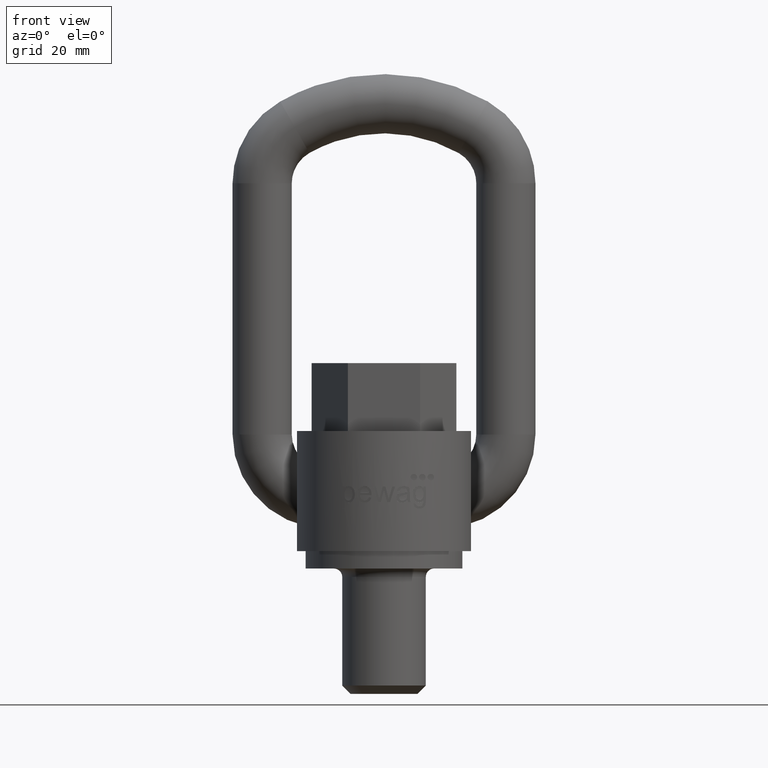
[diagram: clean part render]
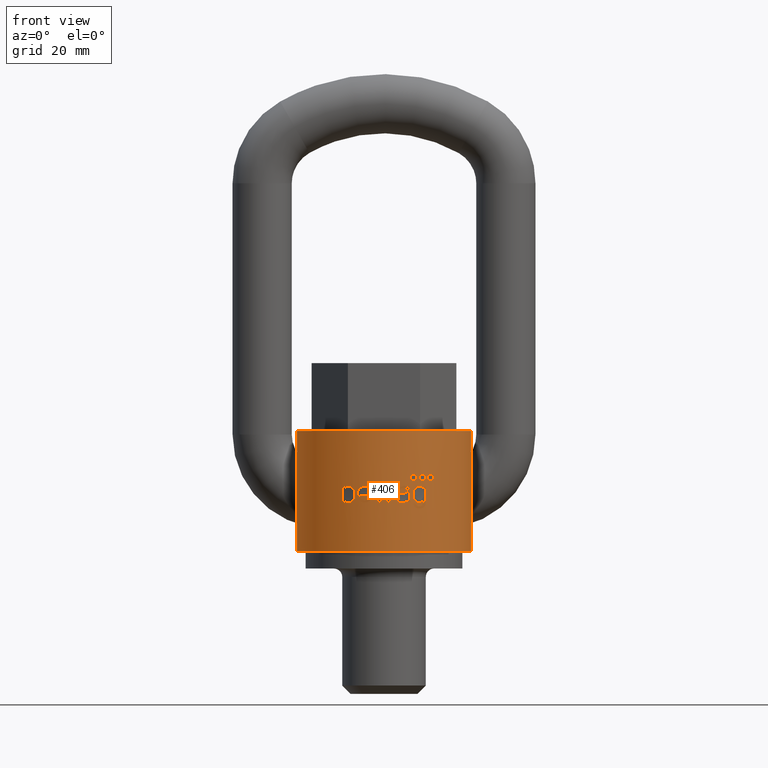
[diagram: same view with one face highlighted and labeled with its STEP entity id]
A machine part, front view. The second image highlights one B-rep face of the part: STEP entity #406.
In plain terms, the highlighted cylindrical surface (partial cylindrical patch) has radius 25 mm, axis along (0, 0, -1).
Its self-contained STEP definition (entity closure, byte-faithful):
#406=ADVANCED_FACE('',(#566,#567,#568,#569,#570,#571,#572,#573,#574),#535,
 .T.);
#535=CYLINDRICAL_SURFACE('',#2447,25.);
#553=ELLIPSE('',#2422,25.1940145104187,25.);
#554=ELLIPSE('',#2423,82.1704764121099,25.);
#555=ELLIPSE('',#2425,96.4746546832224,25.);
#556=ELLIPSE('',#2427,98.2829509461814,25.);
#557=ELLIPSE('',#2429,83.8023845269046,25.);
#558=ELLIPSE('',#2431,92.7768803298747,25.);
#559=ELLIPSE('',#2432,100.913495396455,25.);
#560=ELLIPSE('',#2433,93.9639350803186,25.);
#561=ELLIPSE('',#2435,98.7868482011468,25.);
#562=ELLIPSE('',#2437,87.0223323021271,25.);
#563=ELLIPSE('',#2440,25.2827954281472,25.);
#564=ELLIPSE('',#2441,25.2141833962512,25.);
#565=ELLIPSE('',#2442,25.3446411133094,25.);
#566=FACE_BOUND('',#625,.T.);
#567=FACE_BOUND('',#626,.T.);
#568=FACE_BOUND('',#627,.T.);
#569=FACE_BOUND('',#628,.T.);
#570=FACE_BOUND('',#629,.T.);
#571=FACE_BOUND('',#630,.T.);
#572=FACE_BOUND('',#631,.T.);
#573=FACE_BOUND('',#632,.T.);
#574=FACE_BOUND('',#633,.T.);
#625=EDGE_LOOP('',(#1120,#1121,#1122,#1123,#1124,#1125,#1126,#1127,#1128,
#1129));
#626=EDGE_LOOP('',(#1130,#1131,#1132,#1133,#1134,#1135,#1136,#1137,#1138));
#627=EDGE_LOOP('',(#1139,#1140,#1141,#1142,#1143,#1144,#1145,#1146,#1147,
#1148,#1149,#1150,#1151,#1152,#1153,#1154,#1155,#1156,#1157));
#628=EDGE_LOOP('',(#1158,#1159,#1160,#1161,#1162,#1163,#1164,#1165,#1166,
#1167,#1168,#1169,#1170,#1171,#1172,#1173,#1174));
#629=EDGE_LOOP('',(#1175,#1176,#1177,#1178,#1179,#1180,#1181,#1182,#1183,
#1184,#1185));
#630=EDGE_LOOP('',(#1186));
#631=EDGE_LOOP('',(#1187,#1188,#1189,#1190));
#632=EDGE_LOOP('',(#1191));
#633=EDGE_LOOP('',(#1192));
#787=LINE('',#3044,#913);
#788=LINE('',#3048,#914);
#789=LINE('',#3052,#915);
#790=LINE('',#3608,#916);
#791=LINE('',#3673,#917);
#792=LINE('',#3677,#918);
#913=VECTOR('',#2554,1.);
#914=VECTOR('',#2557,1.);
#915=VECTOR('',#2560,1.);
#916=VECTOR('',#2609,1.);
#917=VECTOR('',#2614,1.);
#918=VECTOR('',#2617,1.);
#1084=CIRCLE('',#2417,25.);
#1085=CIRCLE('',#2418,25.);
#1086=CIRCLE('',#2419,25.);
#1087=CIRCLE('',#2420,25.);
#1088=CIRCLE('',#2421,25.);
#1089=CIRCLE('',#2424,25.);
#1090=CIRCLE('',#2426,25.);
#1091=CIRCLE('',#2428,25.);
#1092=CIRCLE('',#2430,25.);
#1093=CIRCLE('',#2434,25.);
#1094=CIRCLE('',#2436,25.);
#1095=CIRCLE('',#2438,25.);
#1096=CIRCLE('',#2439,25.);
#1097=CIRCLE('',#2443,25.);
#1098=CIRCLE('',#2444,25.);
#1099=CIRCLE('',#2445,25.);
#1100=CIRCLE('',#2446,25.);
#1120=ORIENTED_EDGE('',*,*,#1938,.F.);
#1121=ORIENTED_EDGE('',*,*,#1939,.F.);
#1122=ORIENTED_EDGE('',*,*,#1940,.F.);
#1123=ORIENTED_EDGE('',*,*,#1941,.F.);
#1124=ORIENTED_EDGE('',*,*,#1942,.F.);
#1125=ORIENTED_EDGE('',*,*,#1943,.F.);
#1126=ORIENTED_EDGE('',*,*,#1944,.F.);
#1127=ORIENTED_EDGE('',*,*,#1945,.F.);
#1128=ORIENTED_EDGE('',*,*,#1946,.F.);
#1129=ORIENTED_EDGE('',*,*,#1947,.F.);
#1130=ORIENTED_EDGE('',*,*,#1948,.F.);
#1131=ORIENTED_EDGE('',*,*,#1949,.F.);
#1132=ORIENTED_EDGE('',*,*,#1950,.F.);
#1133=ORIENTED_EDGE('',*,*,#1951,.F.);
#1134=ORIENTED_EDGE('',*,*,#1952,.F.);
#1135=ORIENTED_EDGE('',*,*,#1953,.F.);
#1136=ORIENTED_EDGE('',*,*,#1954,.F.);
#1137=ORIENTED_EDGE('',*,*,#1955,.F.);
#1138=ORIENTED_EDGE('',*,*,#1956,.F.);
#1139=ORIENTED_EDGE('',*,*,#1957,.F.);
#1140=ORIENTED_EDGE('',*,*,#1958,.F.);
#1141=ORIENTED_EDGE('',*,*,#1959,.F.);
#1142=ORIENTED_EDGE('',*,*,#1960,.F.);
#1143=ORIENTED_EDGE('',*,*,#1961,.F.);
#1144=ORIENTED_EDGE('',*,*,#1962,.F.);
#1145=ORIENTED_EDGE('',*,*,#1963,.F.);
#1146=ORIENTED_EDGE('',*,*,#1964,.F.);
#1147=ORIENTED_EDGE('',*,*,#1965,.F.);
#1148=ORIENTED_EDGE('',*,*,#1966,.F.);
#1149=ORIENTED_EDGE('',*,*,#1967,.F.);
#1150=ORIENTED_EDGE('',*,*,#1968,.F.);
#1151=ORIENTED_EDGE('',*,*,#1969,.F.);
#1152=ORIENTED_EDGE('',*,*,#1970,.F.);
#1153=ORIENTED_EDGE('',*,*,#1971,.F.);
#1154=ORIENTED_EDGE('',*,*,#1972,.F.);
#1155=ORIENTED_EDGE('',*,*,#1973,.F.);
#1156=ORIENTED_EDGE('',*,*,#1974,.F.);
#1157=ORIENTED_EDGE('',*,*,#1975,.F.);
#1158=ORIENTED_EDGE('',*,*,#1976,.F.);
#1159=ORIENTED_EDGE('',*,*,#1977,.F.);
#1160=ORIENTED_EDGE('',*,*,#1978,.F.);
#1161=ORIENTED_EDGE('',*,*,#1979,.F.);
#1162=ORIENTED_EDGE('',*,*,#1980,.F.);
#1163=ORIENTED_EDGE('',*,*,#1981,.F.);
#1164=ORIENTED_EDGE('',*,*,#1982,.F.);
#1165=ORIENTED_EDGE('',*,*,#1983,.F.);
#1166=ORIENTED_EDGE('',*,*,#1984,.F.);
#1167=ORIENTED_EDGE('',*,*,#1985,.F.);
#1168=ORIENTED_EDGE('',*,*,#1986,.F.);
#1169=ORIENTED_EDGE('',*,*,#1987,.F.);
#1170=ORIENTED_EDGE('',*,*,#1988,.F.);
#1171=ORIENTED_EDGE('',*,*,#1989,.F.);
#1172=ORIENTED_EDGE('',*,*,#1990,.F.);
#1173=ORIENTED_EDGE('',*,*,#1991,.F.);
#1174=ORIENTED_EDGE('',*,*,#1992,.F.);
#1175=ORIENTED_EDGE('',*,*,#1993,.F.);
#1176=ORIENTED_EDGE('',*,*,#1994,.F.);
#1177=ORIENTED_EDGE('',*,*,#1995,.F.);
#1178=ORIENTED_EDGE('',*,*,#1996,.F.);
#1179=ORIENTED_EDGE('',*,*,#1997,.F.);
#1180=ORIENTED_EDGE('',*,*,#1998,.F.);
#1181=ORIENTED_EDGE('',*,*,#1999,.F.);
#1182=ORIENTED_EDGE('',*,*,#2000,.F.);
#1183=ORIENTED_EDGE('',*,*,#2001,.F.);
#1184=ORIENTED_EDGE('',*,*,#2002,.F.);
#1185=ORIENTED_EDGE('',*,*,#2003,.F.);
#1186=ORIENTED_EDGE('',*,*,#2004,.T.);
#1187=ORIENTED_EDGE('',*,*,#2005,.F.);
#1188=ORIENTED_EDGE('',*,*,#2006,.F.);
#1189=ORIENTED_EDGE('',*,*,#2007,.F.);
#1190=ORIENTED_EDGE('',*,*,#2008,.F.);
#1191=ORIENTED_EDGE('',*,*,#2009,.T.);
#1192=ORIENTED_EDGE('',*,*,#2010,.T.);
#1728=VERTEX_POINT('',#3000);
#1729=VERTEX_POINT('',#3001);
#1730=VERTEX_POINT('',#3012);
#1731=VERTEX_POINT('',#3041);
#1732=VERTEX_POINT('',#3043);
#1733=VERTEX_POINT('',#3045);
#1734=VERTEX_POINT('',#3047);
#1735=VERTEX_POINT('',#3049);
#1736=VERTEX_POINT('',#3051);
#1737=VERTEX_POINT('',#3053);
#1738=VERTEX_POINT('',#3056);
#1739=VERTEX_POINT('',#3057);
#1740=VERTEX_POINT('',#3068);
#1741=VERTEX_POINT('',#3085);
#1742=VERTEX_POINT('',#3096);
#1743=VERTEX_POINT('',#3098);
#1744=VERTEX_POINT('',#3109);
#1745=VERTEX_POINT('',#3126);
#1746=VERTEX_POINT('',#3158);
#1747=VERTEX_POINT('',#3170);
#1748=VERTEX_POINT('',#3171);
#1749=VERTEX_POINT('',#3173);
#1750=VERTEX_POINT('',#3175);
#1751=VERTEX_POINT('',#3240);
#1752=VERTEX_POINT('',#3251);
#1753=VERTEX_POINT('',#3253);
#1754=VERTEX_POINT('',#3255);
#1755=VERTEX_POINT('',#3257);
#1756=VERTEX_POINT('',#3259);
#1757=VERTEX_POINT('',#3261);
#1758=VERTEX_POINT('',#3263);
#1759=VERTEX_POINT('',#3265);
#1760=VERTEX_POINT('',#3267);
#1761=VERTEX_POINT('',#3269);
#1762=VERTEX_POINT('',#3271);
#1763=VERTEX_POINT('',#3282);
#1764=VERTEX_POINT('',#3284);
#1765=VERTEX_POINT('',#3286);
#1766=VERTEX_POINT('',#3289);
#1767=VERTEX_POINT('',#3290);
#1768=VERTEX_POINT('',#3301);
#1769=VERTEX_POINT('',#3333);
#1770=VERTEX_POINT('',#3344);
#1771=VERTEX_POINT('',#3346);
#1772=VERTEX_POINT('',#3357);
#1773=VERTEX_POINT('',#3368);
#1774=VERTEX_POINT('',#3379);
#1775=VERTEX_POINT('',#3390);
#1776=VERTEX_POINT('',#3401);
#1777=VERTEX_POINT('',#3412);
#1778=VERTEX_POINT('',#3414);
#1779=VERTEX_POINT('',#3425);
#1780=VERTEX_POINT('',#3439);
#1781=VERTEX_POINT('',#3450);
#1782=VERTEX_POINT('',#3461);
#1783=VERTEX_POINT('',#3482);
#1784=VERTEX_POINT('',#3483);
#1785=VERTEX_POINT('',#3503);
#1786=VERTEX_POINT('',#3517);
#1787=VERTEX_POINT('',#3519);
#1788=VERTEX_POINT('',#3530);
#1789=VERTEX_POINT('',#3544);
#1790=VERTEX_POINT('',#3558);
#1791=VERTEX_POINT('',#3605);
#1792=VERTEX_POINT('',#3607);
#1793=VERTEX_POINT('',#3609);
#1794=VERTEX_POINT('',#3669);
#1795=VERTEX_POINT('',#3671);
#1796=VERTEX_POINT('',#3672);
#1797=VERTEX_POINT('',#3674);
#1798=VERTEX_POINT('',#3676);
#1799=VERTEX_POINT('',#3736);
#1800=VERTEX_POINT('',#3795);
#1938=EDGE_CURVE('',#1728,#1729,#2242,.T.);
#1939=EDGE_CURVE('',#1730,#1728,#2243,.T.);
#1940=EDGE_CURVE('',#1731,#1730,#2244,.T.);
#1941=EDGE_CURVE('',#1732,#1731,#1084,.T.);
#1942=EDGE_CURVE('',#1733,#1732,#787,.T.);
#1943=EDGE_CURVE('',#1734,#1733,#1085,.T.);
#1944=EDGE_CURVE('',#1735,#1734,#788,.T.);
#1945=EDGE_CURVE('',#1736,#1735,#1086,.T.);
#1946=EDGE_CURVE('',#1737,#1736,#789,.T.);
#1947=EDGE_CURVE('',#1729,#1737,#1087,.T.);
#1948=EDGE_CURVE('',#1738,#1739,#1088,.T.);
#1949=EDGE_CURVE('',#1740,#1738,#2245,.T.);
#1950=EDGE_CURVE('',#1741,#1740,#2246,.T.);
#1951=EDGE_CURVE('',#1742,#1741,#2247,.T.);
#1952=EDGE_CURVE('',#1743,#1742,#553,.T.);
#1953=EDGE_CURVE('',#1744,#1743,#2248,.T.);
#1954=EDGE_CURVE('',#1745,#1744,#2249,.T.);
#1955=EDGE_CURVE('',#1746,#1745,#2250,.T.);
#1956=EDGE_CURVE('',#1739,#1746,#2251,.T.);
#1957=EDGE_CURVE('',#1747,#1748,#554,.T.);
#1958=EDGE_CURVE('',#1749,#1747,#1089,.T.);
#1959=EDGE_CURVE('',#1750,#1749,#555,.T.);
#1960=EDGE_CURVE('',#1751,#1750,#2252,.T.);
#1961=EDGE_CURVE('',#1752,#1751,#2253,.T.);
#1962=EDGE_CURVE('',#1753,#1752,#1090,.T.);
#1963=EDGE_CURVE('',#1754,#1753,#556,.T.);
#1964=EDGE_CURVE('',#1755,#1754,#1091,.T.);
#1965=EDGE_CURVE('',#1756,#1755,#557,.T.);
#1966=EDGE_CURVE('',#1757,#1756,#1092,.T.);
#1967=EDGE_CURVE('',#1758,#1757,#558,.T.);
#1968=EDGE_CURVE('',#1759,#1758,#559,.T.);
#1969=EDGE_CURVE('',#1760,#1759,#560,.T.);
#1970=EDGE_CURVE('',#1761,#1760,#1093,.T.);
#1971=EDGE_CURVE('',#1762,#1761,#561,.T.);
#1972=EDGE_CURVE('',#1763,#1762,#2254,.T.);
#1973=EDGE_CURVE('',#1764,#1763,#1094,.T.);
#1974=EDGE_CURVE('',#1765,#1764,#562,.T.);
#1975=EDGE_CURVE('',#1748,#1765,#1095,.T.);
#1976=EDGE_CURVE('',#1766,#1767,#1096,.T.);
#1977=EDGE_CURVE('',#1768,#1766,#2255,.T.);
#1978=EDGE_CURVE('',#1769,#1768,#2256,.T.);
#1979=EDGE_CURVE('',#1770,#1769,#2257,.T.);
#1980=EDGE_CURVE('',#1771,#1770,#563,.T.);
#1981=EDGE_CURVE('',#1772,#1771,#2258,.T.);
#1982=EDGE_CURVE('',#1773,#1772,#2259,.T.);
#1983=EDGE_CURVE('',#1774,#1773,#2260,.T.);
#1984=EDGE_CURVE('',#1775,#1774,#2261,.T.);
#1985=EDGE_CURVE('',#1776,#1775,#2262,.T.);
#1986=EDGE_CURVE('',#1777,#1776,#2263,.T.);
#1987=EDGE_CURVE('',#1778,#1777,#564,.T.);
#1988=EDGE_CURVE('',#1779,#1778,#2264,.T.);
#1989=EDGE_CURVE('',#1780,#1779,#2265,.T.);
#1990=EDGE_CURVE('',#1781,#1780,#2266,.T.);
#1991=EDGE_CURVE('',#1782,#1781,#2267,.T.);
#1992=EDGE_CURVE('',#1767,#1782,#2268,.T.);
#1993=EDGE_CURVE('',#1783,#1784,#2269,.T.);
#1994=EDGE_CURVE('',#1785,#1783,#2270,.T.);
#1995=EDGE_CURVE('',#1786,#1785,#2271,.T.);
#1996=EDGE_CURVE('',#1787,#1786,#565,.T.);
#1997=EDGE_CURVE('',#1788,#1787,#2272,.T.);
#1998=EDGE_CURVE('',#1789,#1788,#2273,.T.);
#1999=EDGE_CURVE('',#1790,#1789,#2274,.T.);
#2000=EDGE_CURVE('',#1791,#1790,#2275,.T.);
#2001=EDGE_CURVE('',#1792,#1791,#1097,.T.);
#2002=EDGE_CURVE('',#1793,#1792,#790,.T.);
#2003=EDGE_CURVE('',#1784,#1793,#1098,.T.);
#2004=EDGE_CURVE('',#1794,#1794,#2276,.T.);
#2005=EDGE_CURVE('',#1795,#1796,#1099,.T.);
#2006=EDGE_CURVE('',#1797,#1795,#791,.T.);
#2007=EDGE_CURVE('',#1798,#1797,#1100,.T.);
#2008=EDGE_CURVE('',#1796,#1798,#792,.T.);
#2009=EDGE_CURVE('',#1799,#1799,#2277,.T.);
#2010=EDGE_CURVE('',#1800,#1800,#2278,.T.);
#2242=B_SPLINE_CURVE_WITH_KNOTS('',3,(#2990,#2991,#2992,#2993,#2994,#2995,
#2996,#2997,#2998,#2999),.UNSPECIFIED.,.F.,.F.,(4,3,3,4),(0.,0.391657797747264,
0.69420853210457,1.),.UNSPECIFIED.);
#2243=B_SPLINE_CURVE_WITH_KNOTS('',3,(#3002,#3003,#3004,#3005,#3006,#3007,
#3008,#3009,#3010,#3011),.UNSPECIFIED.,.F.,.F.,(4,3,3,4),(0.,0.352238037569732,
0.705837311240717,1.),.UNSPECIFIED.);
#2244=B_SPLINE_CURVE_WITH_KNOTS('',3,(#3013,#3014,#3015,#3016,#3017,#3018,
#3019,#3020,#3021,#3022,#3023,#3024,#3025,#3026,#3027,#3028,#3029,#3030,
#3031,#3032,#3033,#3034,#3035,#3036,#3037,#3038,#3039,#3040),
 .UNSPECIFIED.,.F.,.F.,(4,3,3,3,3,3,3,3,3,4),(0.,0.090524893395306,0.168768946938943,
0.262343208688417,0.356493992292622,0.443257919153376,0.542905133014063,
0.677139243652385,0.866918457224576,1.),.UNSPECIFIED.);
#2245=B_SPLINE_CURVE_WITH_KNOTS('',3,(#3058,#3059,#3060,#3061,#3062,#3063,
#3064,#3065,#3066,#3067),.UNSPECIFIED.,.F.,.F.,(4,3,3,4),(0.,0.247240170800067,
0.663841143719337,1.),.UNSPECIFIED.);
#2246=B_SPLINE_CURVE_WITH_KNOTS('',3,(#3069,#3070,#3071,#3072,#3073,#3074,
#3075,#3076,#3077,#3078,#3079,#3080,#3081,#3082,#3083,#3084),
 .UNSPECIFIED.,.F.,.F.,(4,3,3,3,3,4),(0.,0.198766169573327,0.395634693446523,
0.634969042155882,0.906976755550902,1.),.UNSPECIFIED.);
#2247=B_SPLINE_CURVE_WITH_KNOTS('',3,(#3086,#3087,#3088,#3089,#3090,#3091,
#3092,#3093,#3094,#3095),.UNSPECIFIED.,.F.,.F.,(4,3,3,4),(0.,0.291582744666725,
0.583827807706867,1.),.UNSPECIFIED.);
#2248=B_SPLINE_CURVE_WITH_KNOTS('',3,(#3099,#3100,#3101,#3102,#3103,#3104,
#3105,#3106,#3107,#3108),.UNSPECIFIED.,.F.,.F.,(4,3,3,4),(0.,0.279743626133194,
0.746666449623448,1.),.UNSPECIFIED.);
#2249=B_SPLINE_CURVE_WITH_KNOTS('',3,(#3110,#3111,#3112,#3113,#3114,#3115,
#3116,#3117,#3118,#3119,#3120,#3121,#3122,#3123,#3124,#3125),
 .UNSPECIFIED.,.F.,.F.,(4,3,3,3,3,4),(0.,0.203862272098563,0.406656114901399,
0.720007632425519,0.924503863407853,1.),.UNSPECIFIED.);
#2250=B_SPLINE_CURVE_WITH_KNOTS('',3,(#3127,#3128,#3129,#3130,#3131,#3132,
#3133,#3134,#3135,#3136,#3137,#3138,#3139,#3140,#3141,#3142,#3143,#3144,
#3145,#3146,#3147,#3148,#3149,#3150,#3151,#3152,#3153,#3154,#3155,#3156,
#3157),.UNSPECIFIED.,.F.,.F.,(4,3,3,3,3,3,3,3,3,3,4),(0.,0.103512007964929,
0.193899697201352,0.278195108082362,0.377585673179034,0.459701063740592,
0.541736966606866,0.628790824986065,0.758833824520308,0.895694136286062,
1.),.UNSPECIFIED.);
#2251=B_SPLINE_CURVE_WITH_KNOTS('',3,(#3159,#3160,#3161,#3162,#3163,#3164,
#3165,#3166,#3167,#3168),.UNSPECIFIED.,.F.,.F.,(4,3,3,4),(0.,0.326762048751428,
0.655781069521527,1.),.UNSPECIFIED.);
#2252=B_SPLINE_CURVE_WITH_KNOTS('',3,(#3176,#3177,#3178,#3179,#3180,#3181,
#3182,#3183,#3184,#3185,#3186,#3187,#3188,#3189,#3190,#3191,#3192,#3193,
#3194,#3195,#3196,#3197,#3198,#3199,#3200,#3201,#3202,#3203,#3204,#3205,
#3206,#3207,#3208,#3209,#3210,#3211,#3212,#3213,#3214,#3215,#3216,#3217,
#3218,#3219,#3220,#3221,#3222,#3223,#3224,#3225,#3226,#3227,#3228,#3229,
#3230,#3231,#3232,#3233,#3234,#3235,#3236,#3237,#3238,#3239),
 .UNSPECIFIED.,.F.,.F.,(4,3,3,3,3,3,3,3,3,3,3,3,3,3,3,3,3,3,3,3,3,4),(0.,
0.499553315865376,0.749371457656866,0.83402970278048,0.889946163447033,
0.926899980440874,0.951339488323282,0.967517620448147,0.978239999314062,
0.985357926739249,0.99009333801803,0.993253012253017,0.995369807962133,
0.996795785888309,0.997763616319236,0.998427273489968,0.998888982388776,
0.999371387681473,0.99959004121599,0.999773233095629,0.999908554340509,
1.),.UNSPECIFIED.);
#2253=B_SPLINE_CURVE_WITH_KNOTS('',3,(#3241,#3242,#3243,#3244,#3245,#3246,
#3247,#3248,#3249,#3250),.UNSPECIFIED.,.F.,.F.,(4,3,3,4),(0.,0.133710786362425,
0.662259428205683,1.),.UNSPECIFIED.);
#2254=B_SPLINE_CURVE_WITH_KNOTS('',3,(#3272,#3273,#3274,#3275,#3276,#3277,
#3278,#3279,#3280,#3281),.UNSPECIFIED.,.F.,.F.,(4,3,3,4),(0.,0.284451124598528,
0.642221045653085,1.),.UNSPECIFIED.);
#2255=B_SPLINE_CURVE_WITH_KNOTS('',3,(#3291,#3292,#3293,#3294,#3295,#3296,
#3297,#3298,#3299,#3300),.UNSPECIFIED.,.F.,.F.,(4,3,3,4),(0.,0.298107772476781,
0.59645938413644,1.),.UNSPECIFIED.);
#2256=B_SPLINE_CURVE_WITH_KNOTS('',3,(#3302,#3303,#3304,#3305,#3306,#3307,
#3308,#3309,#3310,#3311,#3312,#3313,#3314,#3315,#3316,#3317,#3318,#3319,
#3320,#3321,#3322,#3323,#3324,#3325,#3326,#3327,#3328,#3329,#3330,#3331,
#3332),.UNSPECIFIED.,.F.,.F.,(4,3,3,3,3,3,3,3,3,3,4),(0.,0.0780122411292472,
0.156314956137169,0.252221628366133,0.3274870618069,0.402822724376455,0.479618288086522,
0.589759700125953,0.751045473062083,0.909884427350106,1.),.UNSPECIFIED.);
#2257=B_SPLINE_CURVE_WITH_KNOTS('',3,(#3334,#3335,#3336,#3337,#3338,#3339,
#3340,#3341,#3342,#3343),.UNSPECIFIED.,.F.,.F.,(4,3,3,4),(0.,0.336609162967315,
0.658853350552498,1.),.UNSPECIFIED.);
#2258=B_SPLINE_CURVE_WITH_KNOTS('',3,(#3347,#3348,#3349,#3350,#3351,#3352,
#3353,#3354,#3355,#3356),.UNSPECIFIED.,.F.,.F.,(4,3,3,4),(0.,0.296612768273013,
0.593035536686834,1.),.UNSPECIFIED.);
#2259=B_SPLINE_CURVE_WITH_KNOTS('',3,(#3358,#3359,#3360,#3361,#3362,#3363,
#3364,#3365,#3366,#3367),.UNSPECIFIED.,.F.,.F.,(4,3,3,4),(0.,0.354196373045443,
0.676989757518128,1.),.UNSPECIFIED.);
#2260=B_SPLINE_CURVE_WITH_KNOTS('',3,(#3369,#3370,#3371,#3372,#3373,#3374,
#3375,#3376,#3377,#3378),.UNSPECIFIED.,.F.,.F.,(4,3,3,4),(0.,0.284062316983149,
0.568435846295631,1.),.UNSPECIFIED.);
#2261=B_SPLINE_CURVE_WITH_KNOTS('',3,(#3380,#3381,#3382,#3383,#3384,#3385,
#3386,#3387,#3388,#3389),.UNSPECIFIED.,.F.,.F.,(4,3,3,4),(0.,0.294807138526082,
0.590298925498024,1.),.UNSPECIFIED.);
#2262=B_SPLINE_CURVE_WITH_KNOTS('',3,(#3391,#3392,#3393,#3394,#3395,#3396,
#3397,#3398,#3399,#3400),.UNSPECIFIED.,.F.,.F.,(4,3,3,4),(0.,0.278855867610513,
0.735722394139038,1.),.UNSPECIFIED.);
#2263=B_SPLINE_CURVE_WITH_KNOTS('',3,(#3402,#3403,#3404,#3405,#3406,#3407,
#3408,#3409,#3410,#3411),.UNSPECIFIED.,.F.,.F.,(4,3,3,4),(0.,0.324752376652671,
0.768673925460945,1.),.UNSPECIFIED.);
#2264=B_SPLINE_CURVE_WITH_KNOTS('',3,(#3415,#3416,#3417,#3418,#3419,#3420,
#3421,#3422,#3423,#3424),.UNSPECIFIED.,.F.,.F.,(4,3,3,4),(0.,0.27674671990417,
0.659623398338775,1.),.UNSPECIFIED.);
#2265=B_SPLINE_CURVE_WITH_KNOTS('',3,(#3426,#3427,#3428,#3429,#3430,#3431,
#3432,#3433,#3434,#3435,#3436,#3437,#3438),.UNSPECIFIED.,.F.,.F.,(4,3,3,
3,4),(0.,0.169752759976955,0.616422555181209,0.880352645211535,1.),
 .UNSPECIFIED.);
#2266=B_SPLINE_CURVE_WITH_KNOTS('',3,(#3440,#3441,#3442,#3443,#3444,#3445,
#3446,#3447,#3448,#3449),.UNSPECIFIED.,.F.,.F.,(4,3,3,4),(0.,0.260453290197954,
0.651117404602234,1.),.UNSPECIFIED.);
#2267=B_SPLINE_CURVE_WITH_KNOTS('',3,(#3451,#3452,#3453,#3454,#3455,#3456,
#3457,#3458,#3459,#3460),.UNSPECIFIED.,.F.,.F.,(4,3,3,4),(0.,0.28527138587973,
0.641607229579716,1.),.UNSPECIFIED.);
#2268=B_SPLINE_CURVE_WITH_KNOTS('',3,(#3462,#3463,#3464,#3465,#3466,#3467,
#3468,#3469,#3470,#3471),.UNSPECIFIED.,.F.,.F.,(4,3,3,4),(0.,0.264702455054183,
0.529532191004711,1.),.UNSPECIFIED.);
#2269=B_SPLINE_CURVE_WITH_KNOTS('',3,(#3472,#3473,#3474,#3475,#3476,#3477,
#3478,#3479,#3480,#3481),.UNSPECIFIED.,.F.,.F.,(4,3,3,4),(0.,0.146567078125603,
0.470503150225408,1.),.UNSPECIFIED.);
#2270=B_SPLINE_CURVE_WITH_KNOTS('',3,(#3484,#3485,#3486,#3487,#3488,#3489,
#3490,#3491,#3492,#3493,#3494,#3495,#3496,#3497,#3498,#3499,#3500,#3501,
#3502),.UNSPECIFIED.,.F.,.F.,(4,3,3,3,3,3,4),(0.,0.191184255901722,0.449337348737339,
0.671797294418079,0.828129636679736,0.957888930864537,1.),.UNSPECIFIED.);
#2271=B_SPLINE_CURVE_WITH_KNOTS('',3,(#3504,#3505,#3506,#3507,#3508,#3509,
#3510,#3511,#3512,#3513,#3514,#3515,#3516),.UNSPECIFIED.,.F.,.F.,(4,3,3,
3,4),(0.,0.401043475483821,0.633320924333615,0.866741825314167,1.),
 .UNSPECIFIED.);
#2272=B_SPLINE_CURVE_WITH_KNOTS('',3,(#3520,#3521,#3522,#3523,#3524,#3525,
#3526,#3527,#3528,#3529),.UNSPECIFIED.,.F.,.F.,(4,3,3,4),(0.,0.256741034386155,
0.614734922507561,1.),.UNSPECIFIED.);
#2273=B_SPLINE_CURVE_WITH_KNOTS('',3,(#3531,#3532,#3533,#3534,#3535,#3536,
#3537,#3538,#3539,#3540,#3541,#3542,#3543),.UNSPECIFIED.,.F.,.F.,(4,3,3,
3,4),(0.,0.199350171071177,0.49807101539085,0.843112996930404,1.),
 .UNSPECIFIED.);
#2274=B_SPLINE_CURVE_WITH_KNOTS('',3,(#3545,#3546,#3547,#3548,#3549,#3550,
#3551,#3552,#3553,#3554,#3555,#3556,#3557),.UNSPECIFIED.,.F.,.F.,(4,3,3,
3,4),(0.,0.368966348729241,0.743470048428434,0.957910841717714,1.),
 .UNSPECIFIED.);
#2275=B_SPLINE_CURVE_WITH_KNOTS('',3,(#3559,#3560,#3561,#3562,#3563,#3564,
#3565,#3566,#3567,#3568,#3569,#3570,#3571,#3572,#3573,#3574,#3575,#3576,
#3577,#3578,#3579,#3580,#3581,#3582,#3583,#3584,#3585,#3586,#3587,#3588,
#3589,#3590,#3591,#3592,#3593,#3594,#3595,#3596,#3597,#3598,#3599,#3600,
#3601,#3602,#3603,#3604),.UNSPECIFIED.,.F.,.F.,(4,3,3,3,3,3,3,3,3,3,3,3,
3,3,3,4),(0.,0.0693455366971943,0.131181607699316,0.203672485315948,0.260879031244601,
0.318211849546145,0.394648743714359,0.490824651035635,0.590098287636913,
0.666939584909756,0.731168834752845,0.796085378360992,0.866356182898308,
0.922400773229938,0.978520980007998,1.),.UNSPECIFIED.);
#2276=B_SPLINE_CURVE_WITH_KNOTS('',3,(#3611,#3612,#3613,#3614,#3615,#3616,
#3617,#3618,#3619,#3620,#3621,#3622,#3623,#3624,#3625,#3626,#3627,#3628,
#3629,#3630,#3631,#3632,#3633,#3634,#3635,#3636,#3637,#3638,#3639,#3640,
#3641,#3642,#3643,#3644,#3645,#3646,#3647,#3648,#3649,#3650,#3651,#3652,
#3653,#3654,#3655,#3656,#3657,#3658,#3659,#3660,#3661,#3662,#3663,#3664,
#3665,#3666,#3667,#3668),.UNSPECIFIED.,.T.,.F.,(1,3,3,3,3,3,3,3,3,3,3,3,
3,3,3,3,3,3,3,3,3,1),(-0.0367073868415164,0.,0.0609914840100636,0.122231249399369,
0.179301292083767,0.230755369736956,0.278391120314944,0.324878189726591,
0.372681240418363,0.423792491215211,0.479527479500677,0.539959743675109,
0.603004205015674,0.66412453132678,0.718757726555897,0.76653666264883,0.811206380762683,
0.857057487616175,0.907225610016426,0.963292613158484,1.,1.06099148401006),
 .UNSPECIFIED.);
#2277=B_SPLINE_CURVE_WITH_KNOTS('',3,(#3678,#3679,#3680,#3681,#3682,#3683,
#3684,#3685,#3686,#3687,#3688,#3689,#3690,#3691,#3692,#3693,#3694,#3695,
#3696,#3697,#3698,#3699,#3700,#3701,#3702,#3703,#3704,#3705,#3706,#3707,
#3708,#3709,#3710,#3711,#3712,#3713,#3714,#3715,#3716,#3717,#3718,#3719,
#3720,#3721,#3722,#3723,#3724,#3725,#3726,#3727,#3728,#3729,#3730,#3731,
#3732,#3733,#3734,#3735),.UNSPECIFIED.,.T.,.F.,(1,3,3,3,3,3,3,3,3,3,3,3,
3,3,3,3,3,3,3,3,3,1),(-0.0367197482967924,0.,0.0576245706939576,0.115380338516388,
0.170999496159536,0.22356569032424,0.273920264410148,0.323453498183324,
0.373593188642526,0.425570256117129,0.480210313262633,0.537583476956382,
0.596550106951983,0.654679211305302,0.709389457177728,0.759995746809845,
0.808271178746387,0.856951409014801,0.908279432979368,0.963280251703208,
1.,1.05762457069396),.UNSPECIFIED.);
#2278=B_SPLINE_CURVE_WITH_KNOTS('',3,(#3737,#3738,#3739,#3740,#3741,#3742,
#3743,#3744,#3745,#3746,#3747,#3748,#3749,#3750,#3751,#3752,#3753,#3754,
#3755,#3756,#3757,#3758,#3759,#3760,#3761,#3762,#3763,#3764,#3765,#3766,
#3767,#3768,#3769,#3770,#3771,#3772,#3773,#3774,#3775,#3776,#3777,#3778,
#3779,#3780,#3781,#3782,#3783,#3784,#3785,#3786,#3787,#3788,#3789,#3790,
#3791,#3792,#3793,#3794),.UNSPECIFIED.,.T.,.F.,(1,3,3,3,3,3,3,3,3,3,3,3,
3,3,3,3,3,3,3,3,3,1),(-0.065995406742672,0.,0.0748415571720549,0.14155922398964,
0.18940613917509,0.237532672015934,0.281312267162052,0.323847856577257,
0.368697963810673,0.418673756299006,0.475805103754144,0.540469776596689,
0.609516497803681,0.662909236118809,0.707889954346457,0.753174917817909,
0.793903464076127,0.834776206969874,0.880423710865828,0.934004593257328,
1.,1.07484155717205),.UNSPECIFIED.);
#2417=AXIS2_PLACEMENT_3D('',#3042,#2552,#2553);
#2418=AXIS2_PLACEMENT_3D('',#3046,#2555,#2556);
#2419=AXIS2_PLACEMENT_3D('',#3050,#2558,#2559);
#2420=AXIS2_PLACEMENT_3D('',#3054,#2561,#2562);
#2421=AXIS2_PLACEMENT_3D('',#3055,#2563,#2564);
#2422=AXIS2_PLACEMENT_3D('',#3097,#2565,#2566);
#2423=AXIS2_PLACEMENT_3D('',#3169,#2567,#2568);
#2424=AXIS2_PLACEMENT_3D('',#3172,#2569,#2570);
#2425=AXIS2_PLACEMENT_3D('',#3174,#2571,#2572);
#2426=AXIS2_PLACEMENT_3D('',#3252,#2573,#2574);
#2427=AXIS2_PLACEMENT_3D('',#3254,#2575,#2576);
#2428=AXIS2_PLACEMENT_3D('',#3256,#2577,#2578);
#2429=AXIS2_PLACEMENT_3D('',#3258,#2579,#2580);
#2430=AXIS2_PLACEMENT_3D('',#3260,#2581,#2582);
#2431=AXIS2_PLACEMENT_3D('',#3262,#2583,#2584);
#2432=AXIS2_PLACEMENT_3D('',#3264,#2585,#2586);
#2433=AXIS2_PLACEMENT_3D('',#3266,#2587,#2588);
#2434=AXIS2_PLACEMENT_3D('',#3268,#2589,#2590);
#2435=AXIS2_PLACEMENT_3D('',#3270,#2591,#2592);
#2436=AXIS2_PLACEMENT_3D('',#3283,#2593,#2594);
#2437=AXIS2_PLACEMENT_3D('',#3285,#2595,#2596);
#2438=AXIS2_PLACEMENT_3D('',#3287,#2597,#2598);
#2439=AXIS2_PLACEMENT_3D('',#3288,#2599,#2600);
#2440=AXIS2_PLACEMENT_3D('',#3345,#2601,#2602);
#2441=AXIS2_PLACEMENT_3D('',#3413,#2603,#2604);
#2442=AXIS2_PLACEMENT_3D('',#3518,#2605,#2606);
#2443=AXIS2_PLACEMENT_3D('',#3606,#2607,#2608);
#2444=AXIS2_PLACEMENT_3D('',#3610,#2610,#2611);
#2445=AXIS2_PLACEMENT_3D('',#3670,#2612,#2613);
#2446=AXIS2_PLACEMENT_3D('',#3675,#2615,#2616);
#2447=AXIS2_PLACEMENT_3D('',#3796,#2618,#2619);
#2552=DIRECTION('',(0.,0.,1.));
#2553=DIRECTION('',(-1.,0.,0.));
#2554=DIRECTION('',(0.,0.,1.));
#2555=DIRECTION('',(0.,0.,1.));
#2556=DIRECTION('',(-1.,0.,0.));
#2557=DIRECTION('',(0.,0.,-1.));
#2558=DIRECTION('',(0.,0.,-1.));
#2559=DIRECTION('',(1.,0.,0.));
#2560=DIRECTION('',(0.,0.,1.));
#2561=DIRECTION('',(0.,0.,-1.));
#2562=DIRECTION('',(1.,0.,0.));
#2563=DIRECTION('',(0.,0.,1.));
#2564=DIRECTION('',(-1.,0.,0.));
#2565=DIRECTION('',(-0.123864170013732,0.,-0.992299182397532));
#2566=DIRECTION('',(0.992299182397532,0.,-0.123864170013732));
#2567=DIRECTION('',(-0.952593648183112,0.,0.304245528218887));
#2568=DIRECTION('',(-0.304245528218887,0.,-0.952593648183112));
#2569=DIRECTION('',(0.,0.,1.));
#2570=DIRECTION('',(-1.,0.,0.));
#2571=DIRECTION('',(0.965840998800877,0.,0.259135418334363));
#2572=DIRECTION('',(0.259135418334363,0.,-0.965840998800877));
#2573=DIRECTION('',(0.,0.,1.));
#2574=DIRECTION('',(-1.,0.,0.));
#2575=DIRECTION('',(-0.96710760287855,0.,0.254367616756743));
#2576=DIRECTION('',(-0.254367616756743,0.,-0.96710760287855));
#2577=DIRECTION('',(0.,0.,1.));
#2578=DIRECTION('',(-1.,0.,0.));
#2579=DIRECTION('',(0.954465641275027,0.,0.298320866895784));
#2580=DIRECTION('',(0.298320866895784,0.,-0.954465641275027));
#2581=DIRECTION('',(0.,0.,-1.));
#2582=DIRECTION('',(1.,0.,0.));
#2583=DIRECTION('',(-0.963010551756508,0.,-0.269463684391098));
#2584=DIRECTION('',(0.269463684391098,0.,-0.963010551756508));
#2585=DIRECTION('',(0.968827338219047,0.,-0.24773693450795));
#2586=DIRECTION('',(-0.24773693450795,0.,-0.968827338219047));
#2587=DIRECTION('',(0.963956601090742,0.,-0.266059525696008));
#2588=DIRECTION('',(-0.266059525696007,0.,-0.963956601090742));
#2589=DIRECTION('',(0.,0.,-1.));
#2590=DIRECTION('',(1.,0.,0.));
#2591=DIRECTION('',(-0.967447937590639,0.,-0.25307012477102));
#2592=DIRECTION('',(0.25307012477102,0.,-0.967447937590639));
#2593=DIRECTION('',(0.,0.,-1.));
#2594=DIRECTION('',(1.,0.,0.));
#2595=DIRECTION('',(0.957845874951683,0.,-0.287282578375447));
#2596=DIRECTION('',(-0.287282578375447,0.,-0.957845874951683));
#2597=DIRECTION('',(0.,0.,-1.));
#2598=DIRECTION('',(1.,0.,0.));
#2599=DIRECTION('',(0.,0.,1.));
#2600=DIRECTION('',(-1.,0.,0.));
#2601=DIRECTION('',(0.149149158822099,0.,-0.988814708842188));
#2602=DIRECTION('',(-0.988814708842188,0.,-0.149149158822099));
#2603=DIRECTION('',(0.130065224599902,0.,0.991505439899236));
#2604=DIRECTION('',(0.991505439899236,0.,-0.130065224599902));
#2605=DIRECTION('',(-0.164351632031852,0.,-0.986401815209434));
#2606=DIRECTION('',(0.986401815209434,0.,-0.164351632031852));
#2607=DIRECTION('',(0.,0.,-1.));
#2608=DIRECTION('',(1.,0.,0.));
#2609=DIRECTION('',(0.,0.,-1.));
#2610=DIRECTION('',(0.,0.,-1.));
#2611=DIRECTION('',(1.,0.,0.));
#2612=DIRECTION('',(0.,1.34667086366912E-16,-1.));
#2613=DIRECTION('',(0.,-1.,-1.34667086366912E-16));
#2614=DIRECTION('',(0.,0.,-1.));
#2615=DIRECTION('',(0.,2.63110964220579E-16,1.));
#2616=DIRECTION('',(0.,1.,-2.77555756156289E-16));
#2617=DIRECTION('',(0.,0.,1.));
#2618=DIRECTION('',(0.,0.,-1.));
#2619=DIRECTION('',(-1.,0.,0.));
#2990=CARTESIAN_POINT('',(-10.1546788825303,-23.8447476850302,18.6255436172934));
#2991=CARTESIAN_POINT('',(-10.3398445774059,-23.762440005495,18.6255436172934));
#2992=CARTESIAN_POINT('',(-10.5277401786975,-23.6760451426631,18.5967743513143));
#2993=CARTESIAN_POINT('',(-10.7000198266619,-23.594458960308,18.5280407611619));
#2994=CARTESIAN_POINT('',(-10.8335172738126,-23.5312387993902,18.4747799208522));
#2995=CARTESIAN_POINT('',(-10.9602521995189,-23.4697055512604,18.3957893050296));
#2996=CARTESIAN_POINT('',(-11.0693170805012,-23.4158475050873,18.296495615142));
#2997=CARTESIAN_POINT('',(-11.1797328952877,-23.3613223454074,18.195972022457));
#2998=CARTESIAN_POINT('',(-11.2747889936255,-23.3133739305505,18.0728429528692));
#2999=CARTESIAN_POINT('',(-11.3520666539238,-23.2739889262088,17.9396265029419));
#3000=CARTESIAN_POINT('',(-10.1546788825303,-23.8447476850302,18.6255436172934));
#3001=CARTESIAN_POINT('',(-11.3520666539238,-23.2739889262088,17.9396265029419));
#3002=CARTESIAN_POINT('',(-8.85059319091368,-24.3809110209366,17.9795983627526));
#3003=CARTESIAN_POINT('',(-8.96002497563639,-24.3394867920915,18.1266374845623));
#3004=CARTESIAN_POINT('',(-9.0917321706923,-24.2887417474713,18.2583556607438));
#3005=CARTESIAN_POINT('',(-9.23890553041256,-24.2302093102949,18.3594780695977));
#3006=CARTESIAN_POINT('',(-9.38651059170646,-24.1715051807329,18.4608970994101));
#3007=CARTESIAN_POINT('',(-9.55311513268174,-24.103501008325,18.5335537831981));
#3008=CARTESIAN_POINT('',(-9.72240942648769,-24.0320375769002,18.5754067234657));
#3009=CARTESIAN_POINT('',(-9.8642652410766,-23.9721566261004,18.6104763220986));
#3010=CARTESIAN_POINT('',(-10.010373322845,-23.9088926972567,18.6255436172934));
#3011=CARTESIAN_POINT('',(-10.1546788825303,-23.8447476850302,18.6255436172934));
#3012=CARTESIAN_POINT('',(-8.85059319091368,-24.3809110209366,17.9795983627526));
#3013=CARTESIAN_POINT('',(-11.2853804537843,-23.3078503673784,14.4732668201586));
#3014=CARTESIAN_POINT('',(-11.1753168484644,-23.3635307507275,14.3162309374009));
#3015=CARTESIAN_POINT('',(-11.0378518650616,-23.4320322426692,14.1769090425039));
#3016=CARTESIAN_POINT('',(-10.8812800414274,-23.5077263325293,14.078775258395));
#3017=CARTESIAN_POINT('',(-10.7454436577563,-23.573395947874,13.9936377282833));
#3018=CARTESIAN_POINT('',(-10.5918174785126,-23.6460316007683,13.9374250876143));
#3019=CARTESIAN_POINT('',(-10.4361540436287,-23.717541433387,13.9115859811897));
#3020=CARTESIAN_POINT('',(-10.2498305691739,-23.80313610423,13.8806575098411));
#3021=CARTESIAN_POINT('',(-10.0550599752893,-23.8896766190305,13.8875350859397));
#3022=CARTESIAN_POINT('',(-9.86782477834349,-23.9701117573232,13.9259098784743));
#3023=CARTESIAN_POINT('',(-9.68000262540699,-24.050799048454,13.9644049705826));
#3024=CARTESIAN_POINT('',(-9.49452955359875,-24.1275892957715,14.0410493154645));
#3025=CARTESIAN_POINT('',(-9.3299271989489,-24.1938021562294,14.1496375015339));
#3026=CARTESIAN_POINT('',(-9.17748443208514,-24.2551237070155,14.2502040066021));
#3027=CARTESIAN_POINT('',(-9.03910737385242,-24.3090321361821,14.3793650564979));
#3028=CARTESIAN_POINT('',(-8.91932220352666,-24.3547787707286,14.5231409588572));
#3029=CARTESIAN_POINT('',(-8.78217155711724,-24.4071573788823,14.6877603177732));
#3030=CARTESIAN_POINT('',(-8.66879939907751,-24.4490878694886,14.8788156951566));
#3031=CARTESIAN_POINT('',(-8.58582729757104,-24.479428647569,15.080925613987));
#3032=CARTESIAN_POINT('',(-8.47437278189506,-24.5201847169561,15.3524152196203));
#3033=CARTESIAN_POINT('',(-8.41306433688606,-24.5419001048623,15.6494575606138));
#3034=CARTESIAN_POINT('',(-8.38792625006387,-24.5508533438492,15.9445468493484));
#3035=CARTESIAN_POINT('',(-8.35250087853923,-24.5634705258846,16.3603958262537));
#3036=CARTESIAN_POINT('',(-8.37390176415406,-24.5561172848956,16.7914892319293));
#3037=CARTESIAN_POINT('',(-8.48071328839234,-24.5175998375703,17.1933004144078));
#3038=CARTESIAN_POINT('',(-8.55571923301161,-24.4905518430626,17.4754631072007));
#3039=CARTESIAN_POINT('',(-8.6803266794008,-24.4453635833747,17.7497539519186));
#3040=CARTESIAN_POINT('',(-8.85059319091368,-24.3809110209366,17.9795983627526));
#3041=CARTESIAN_POINT('',(-11.2853804537843,-23.3078503673784,14.4732668201586));
#3042=CARTESIAN_POINT('',(0.,-1.00000000000001,14.4732668201586));
#3043=CARTESIAN_POINT('',(-11.3046453560468,-23.29809394038,14.4732668201586));
#3044=CARTESIAN_POINT('',(-11.3046453560468,-23.29809394038,34.51));
#3045=CARTESIAN_POINT('',(-11.3046453560468,-23.29809394038,12.2604246610386));
#3046=CARTESIAN_POINT('',(0.,-1.00000000000001,12.2604246610386));
#3047=CARTESIAN_POINT('',(-12.0159648242014,-22.9229694463035,12.2604246610386));
#3048=CARTESIAN_POINT('',(-12.0159648242014,-22.9229694463035,34.51));
#3049=CARTESIAN_POINT('',(-12.0159648242014,-22.9229694463035,18.523215656178));
#3050=CARTESIAN_POINT('',(0.,-1.00000000000001,18.523215656178));
#3051=CARTESIAN_POINT('',(-11.368367725069,-23.2656734743778,18.523215656178));
#3052=CARTESIAN_POINT('',(-11.368367725069,-23.2656734743778,34.51));
#3053=CARTESIAN_POINT('',(-11.368367725069,-23.2656734743778,17.9396265029419));
#3054=CARTESIAN_POINT('',(0.,-1.00000000000001,17.9396265029419));
#3055=CARTESIAN_POINT('',(0.,-1.00000000000001,16.067344589409));
#3056=CARTESIAN_POINT('',(-6.93421106533471,-25.0190906759892,16.067344589409));
#3057=CARTESIAN_POINT('',(-3.57428237502583,-25.7431708861977,16.067344589409));
#3058=CARTESIAN_POINT('',(-6.50946536297491,-25.1376647728862,14.9209516500384));
#3059=CARTESIAN_POINT('',(-6.57974085849081,-25.118712819239,14.9945233657546));
#3060=CARTESIAN_POINT('',(-6.64138030974175,-25.1017616785233,15.0777694768657));
#3061=CARTESIAN_POINT('',(-6.69280288098553,-25.0874737072253,15.1664384805443));
#3062=CARTESIAN_POINT('',(-6.77884716224098,-25.0635659524945,15.31480641522));
#3063=CARTESIAN_POINT('',(-6.83811853617837,-25.0466569818525,15.4811485397757));
#3064=CARTESIAN_POINT('',(-6.87629972365021,-25.0357338583728,15.6497045405875));
#3065=CARTESIAN_POINT('',(-6.90731162874377,-25.0268617700196,15.7866107775657));
#3066=CARTESIAN_POINT('',(-6.92532154470561,-25.0216570434318,15.9269944554086));
#3067=CARTESIAN_POINT('',(-6.93421106533471,-25.0190906759892,16.067344589409));
#3068=CARTESIAN_POINT('',(-6.50946536297491,-25.1376647728862,14.9209516500384));
#3069=CARTESIAN_POINT('',(-4.83425563389166,-25.5281465354842,14.7562675876183));
#3070=CARTESIAN_POINT('',(-4.93023906452289,-25.5092291484889,14.6805204083077));
#3071=CARTESIAN_POINT('',(-5.04137083885154,-25.4867001645653,14.6221372838171));
#3072=CARTESIAN_POINT('',(-5.15675397353532,-25.4623769993113,14.5846748022849));
#3073=CARTESIAN_POINT('',(-5.2715310084979,-25.4381816019822,14.547409108608));
#3074=CARTESIAN_POINT('',(-5.39279430520943,-25.4117369754413,14.5291894417777));
#3075=CARTESIAN_POINT('',(-5.51278077038852,-25.3846108883787,14.5252727459209));
#3076=CARTESIAN_POINT('',(-5.65838118983982,-25.3516940952346,14.5205199385208));
#3077=CARTESIAN_POINT('',(-5.80634910409003,-25.31680580469,14.5353657404004));
#3078=CARTESIAN_POINT('',(-5.94621144325555,-25.2825568973306,14.5750031598585));
#3079=CARTESIAN_POINT('',(-6.10393935727415,-25.2439331423766,14.6197037384812));
#3080=CARTESIAN_POINT('',(-6.25520640139048,-25.2051620953207,14.6990050911623));
#3081=CARTESIAN_POINT('',(-6.38303337213676,-25.1714063506903,14.8033547260005));
#3082=CARTESIAN_POINT('',(-6.42754106326473,-25.159653038795,14.8396879136649));
#3083=CARTESIAN_POINT('',(-6.46976507355757,-25.1483711797111,14.8791373545285));
#3084=CARTESIAN_POINT('',(-6.50946536297491,-25.1376647728862,14.9209516500384));
#3085=CARTESIAN_POINT('',(-4.83425563389166,-25.5281465354842,14.7562675876183));
#3086=CARTESIAN_POINT('',(-4.38098223510471,-25.6131467849135,15.4581734458941));
#3087=CARTESIAN_POINT('',(-4.40720615711334,-25.6084790950216,15.3796082987804));
#3088=CARTESIAN_POINT('',(-4.43757302030845,-25.6030332592424,15.3022621549799));
#3089=CARTESIAN_POINT('',(-4.47304488710936,-25.5965824747648,15.2275487170941));
#3090=CARTESIAN_POINT('',(-4.50856337135401,-25.5901232126087,15.1527370901418));
#3091=CARTESIAN_POINT('',(-4.54943079662591,-25.5826149781614,15.0801714609478));
#3092=CARTESIAN_POINT('',(-4.59636348239923,-25.5738365490142,15.0121984773021));
#3093=CARTESIAN_POINT('',(-4.66273090296001,-25.5614229892643,14.9160780120432));
#3094=CARTESIAN_POINT('',(-4.74285705039528,-25.5461602943534,14.8278195145345));
#3095=CARTESIAN_POINT('',(-4.83425563389166,-25.5281465354842,14.7562675876183));
#3096=CARTESIAN_POINT('',(-4.38098223510471,-25.6131467849135,15.4581734458941));
#3097=CARTESIAN_POINT('',(0.,-1.00000000000001,14.9113154639243));
#3098=CARTESIAN_POINT('',(-3.59964032740552,-25.7394945282501,15.360642107956));
#3099=CARTESIAN_POINT('',(-4.29698401784699,-25.627950145117,14.2734075211051));
#3100=CARTESIAN_POINT('',(-4.19914059731213,-25.6450214649716,14.3466274424583));
#3101=CARTESIAN_POINT('',(-4.10823670394673,-25.6602731613123,14.4307250416218));
#3102=CARTESIAN_POINT('',(-4.02756575634231,-25.6734414721242,14.5231626724302));
#3103=CARTESIAN_POINT('',(-3.89403830462695,-25.6952378069674,14.6761664693482));
#3104=CARTESIAN_POINT('',(-3.78664154628497,-25.7116924605775,14.8553349984466));
#3105=CARTESIAN_POINT('',(-3.70753565051016,-25.7235551529345,15.0432614633982));
#3106=CARTESIAN_POINT('',(-3.66420835225116,-25.7300524993696,15.1461911618482));
#3107=CARTESIAN_POINT('',(-3.62856824717078,-25.7352854646229,15.2526631639457));
#3108=CARTESIAN_POINT('',(-3.59964032740552,-25.7394945282501,15.360642107956));
#3109=CARTESIAN_POINT('',(-4.29698401784699,-25.627950145117,14.2734075211051));
#3110=CARTESIAN_POINT('',(-7.14341417246715,-24.9577051063034,14.5180353031466));
#3111=CARTESIAN_POINT('',(-7.00215717056829,-24.9998233836946,14.3624126775101));
#3112=CARTESIAN_POINT('',(-6.83245732388947,-25.0489927882048,14.2302501250101));
#3113=CARTESIAN_POINT('',(-6.64821814379161,-25.0998173335932,14.1332002327444));
#3114=CARTESIAN_POINT('',(-6.46444955676537,-25.1505120603464,14.0363982302428));
#3115=CARTESIAN_POINT('',(-6.26265575894799,-25.2037909507963,13.9715366271786));
#3116=CARTESIAN_POINT('',(-6.05833036687968,-25.2548270075411,13.9346865029646));
#3117=CARTESIAN_POINT('',(-5.74414457683752,-25.3333038118515,13.8780230346011));
#3118=CARTESIAN_POINT('',(-5.41379298219708,-25.4089246901768,13.875335627246));
#3119=CARTESIAN_POINT('',(-5.09692615122812,-25.4749125393519,13.9329818180924));
#3120=CARTESIAN_POINT('',(-4.88930997520811,-25.5181488252947,13.970752517124));
#3121=CARTESIAN_POINT('',(-4.68301774197134,-25.5581967978186,14.0396444757814));
#3122=CARTESIAN_POINT('',(-4.49719423682739,-25.5921785126135,14.1431594344505));
#3123=CARTESIAN_POINT('',(-4.42774654071688,-25.6048784764881,14.1818460117323));
#3124=CARTESIAN_POINT('',(-4.36067669732328,-25.6168373068925,14.2254422185731));
#3125=CARTESIAN_POINT('',(-4.29698401784699,-25.627950145117,14.2734075211051));
#3126=CARTESIAN_POINT('',(-7.14341417246715,-24.9577051063034,14.5180353031466));
#3127=CARTESIAN_POINT('',(-3.89125677977195,-25.6953056404224,17.6678178562292));
#3128=CARTESIAN_POINT('',(-4.02562120067899,-25.6741337435677,17.8900000676103));
#3129=CARTESIAN_POINT('',(-4.19750925267103,-25.6459942597639,18.0969533121673));
#3130=CARTESIAN_POINT('',(-4.40426456880806,-25.608991316345,18.2510636729602));
#3131=CARTESIAN_POINT('',(-4.58536902590263,-25.5765791002821,18.3860545101756));
#3132=CARTESIAN_POINT('',(-4.79771351746305,-25.536303153211,18.4799781345808));
#3133=CARTESIAN_POINT('',(-5.01286088167209,-25.492268694039,18.5419820081779));
#3134=CARTESIAN_POINT('',(-5.21410621737629,-25.4510795790749,18.5999794203372));
#3135=CARTESIAN_POINT('',(-5.42523091750699,-25.4051721208767,18.6272152438536));
#3136=CARTESIAN_POINT('',(-5.63318219201276,-25.3570781989875,18.6254347214203));
#3137=CARTESIAN_POINT('',(-5.87824833702634,-25.3004005370496,18.6233364136803));
#3138=CARTESIAN_POINT('',(-6.1261593662573,-25.2389640947802,18.5899965413748));
#3139=CARTESIAN_POINT('',(-6.35748029943552,-25.1781398011156,18.5121171033717));
#3140=CARTESIAN_POINT('',(-6.54860465037827,-25.1278849301513,18.447770756348));
#3141=CARTESIAN_POINT('',(-6.7320053758839,-25.0771153933231,18.3505837730165));
#3142=CARTESIAN_POINT('',(-6.89107009606254,-25.0315033431359,18.224836098579));
#3143=CARTESIAN_POINT('',(-7.05014996209412,-24.9858869498524,18.099076450677));
#3144=CARTESIAN_POINT('',(-7.18824712415433,-24.9445834756032,17.942167282939));
#3145=CARTESIAN_POINT('',(-7.30130722434022,-24.9100588208352,17.7712046843615));
#3146=CARTESIAN_POINT('',(-7.42133449517293,-24.8734066324731,17.5897067546057));
#3147=CARTESIAN_POINT('',(-7.51487222798103,-24.8438956009511,17.3868626484537));
#3148=CARTESIAN_POINT('',(-7.57993725173799,-24.8231935571139,17.1770308223991));
#3149=CARTESIAN_POINT('',(-7.67665852901258,-24.7924192945915,16.8651089778045));
#3150=CARTESIAN_POINT('',(-7.71414683275885,-24.7800744811986,16.5308576012945));
#3151=CARTESIAN_POINT('',(-7.71231990358708,-24.7806669735047,16.2028429535585));
#3152=CARTESIAN_POINT('',(-7.71040255864142,-24.7812887885952,15.8585946725331));
#3153=CARTESIAN_POINT('',(-7.66356186392443,-24.7967506025849,15.5060958453365));
#3154=CARTESIAN_POINT('',(-7.54479242968171,-24.834347215584,15.1851733343853));
#3155=CARTESIAN_POINT('',(-7.45413820978614,-24.8630439223073,14.9402199079192));
#3156=CARTESIAN_POINT('',(-7.31692492011406,-24.9059698032635,14.7084594312647));
#3157=CARTESIAN_POINT('',(-7.14341417246715,-24.9577051063034,14.5180353031466));
#3158=CARTESIAN_POINT('',(-3.89125677977195,-25.6953056404224,17.6678178562292));
#3159=CARTESIAN_POINT('',(-3.57428237502583,-25.7431708861977,16.067344589409));
#3160=CARTESIAN_POINT('',(-3.57428237502583,-25.7431708861977,16.2473840398546));
#3161=CARTESIAN_POINT('',(-3.58076838795683,-25.7422386758832,16.4276960125916));
#3162=CARTESIAN_POINT('',(-3.59723680291169,-25.7398441261011,16.6069646968534));
#3163=CARTESIAN_POINT('',(-3.61379940523693,-25.7374358812337,16.7872586677628));
#3164=CARTESIAN_POINT('',(-3.64036331541351,-25.7335742111072,16.9674260509398));
#3165=CARTESIAN_POINT('',(-3.68390910705996,-25.7270866397747,17.1430612149404));
#3166=CARTESIAN_POINT('',(-3.72921235360145,-25.7203372379974,17.325784799361));
#3167=CARTESIAN_POINT('',(-3.7937728160346,-25.7106662575509,17.5073598395066));
#3168=CARTESIAN_POINT('',(-3.89125677977195,-25.6953056404224,17.6678178562292));
#3169=CARTESIAN_POINT('',(0.,-1.00000000000001,8.67452481462486));
#3170=CARTESIAN_POINT('',(1.7008847517316,-25.9420727098076,14.));
#3171=CARTESIAN_POINT('',(3.14553865970863,-25.8013222740296,18.523215656178));
#3172=CARTESIAN_POINT('',(0.,-1.00000000000001,14.));
#3173=CARTESIAN_POINT('',(0.890707222257996,-25.9841277743334,14.));
#3174=CARTESIAN_POINT('',(0.,-1.00000000000001,17.319814630954));
#3175=CARTESIAN_POINT('',(0.161872818233547,-25.9994759383215,16.7164875927347));
#3176=CARTESIAN_POINT('',(0.07076851773049,-25.9998998361373,17.0826298286007));
#3177=CARTESIAN_POINT('',(0.085022982301962,-25.9998594852825,17.021389460661));
#3178=CARTESIAN_POINT('',(0.099389986007974,-25.9998067367441,16.9601746018951));
#3179=CARTESIAN_POINT('',(0.114061025262243,-25.9997398002962,16.8990327162478));
#3180=CARTESIAN_POINT('',(0.121397769114223,-25.9997063264868,16.8684566714396));
#3181=CARTESIAN_POINT('',(0.128804435571436,-25.999669343801,16.8378968049973));
#3182=CARTESIAN_POINT('',(0.136412344685793,-25.9996278306741,16.8073871107588));
#3183=CARTESIAN_POINT('',(0.138990531588138,-25.9996137626039,16.7970479107371));
#3184=CARTESIAN_POINT('',(0.141593093717474,-25.9995991649027,16.786714692465));
#3185=CARTESIAN_POINT('',(0.144240688047735,-25.9995838890153,16.7763930494944));
#3186=CARTESIAN_POINT('',(0.145989414701948,-25.9995737993459,16.7695756409618));
#3187=CARTESIAN_POINT('',(0.147757468227212,-25.9995634158873,16.7627630963896));
#3188=CARTESIAN_POINT('',(0.149561427477822,-25.9995526235853,16.7559600955546));
#3189=CARTESIAN_POINT('',(0.150753620104947,-25.9995454912164,16.7514641583902));
#3190=CARTESIAN_POINT('',(0.15196124392036,-25.9995381819148,16.7469722216259));
#3191=CARTESIAN_POINT('',(0.153197614650291,-25.9995306054107,16.7424882328735));
#3192=CARTESIAN_POINT('',(0.154015291976388,-25.999525594668,16.7395227340595));
#3193=CARTESIAN_POINT('',(0.154845347218321,-25.999520468327,16.7365605581878));
#3194=CARTESIAN_POINT('',(0.155698473788724,-25.9995151550037,16.7336050630759));
#3195=CARTESIAN_POINT('',(0.156263215012101,-25.9995116377617,16.7316486242741));
#3196=CARTESIAN_POINT('',(0.15683791550859,-25.9995080395637,16.7296949713625));
#3197=CARTESIAN_POINT('',(0.157431155790998,-25.9995043037095,16.7277469852701));
#3198=CARTESIAN_POINT('',(0.157824337697487,-25.9995018276971,16.7264559183815));
#3199=CARTESIAN_POINT('',(0.15822554969515,-25.9994992919575,16.7251672088322));
#3200=CARTESIAN_POINT('',(0.158641667599329,-25.9994966513588,16.7238833510635));
#3201=CARTESIAN_POINT('',(0.158917902757032,-25.9994948984273,16.7230310766248));
#3202=CARTESIAN_POINT('',(0.1592006230522,-25.9994930998305,16.722180816456));
#3203=CARTESIAN_POINT('',(0.159495328641041,-25.9994912196257,16.7213347516035));
#3204=CARTESIAN_POINT('',(0.159691390299149,-25.9994899687635,16.7207718817967));
#3205=CARTESIAN_POINT('',(0.15989269781231,-25.9994886821648,16.7202107516963));
#3206=CARTESIAN_POINT('',(0.160103642118114,-25.999487331219,16.7196532888431));
#3207=CARTESIAN_POINT('',(0.160244393445147,-25.9994864298085,16.7192813250869));
#3208=CARTESIAN_POINT('',(0.160389397048383,-25.9994854999988,16.7189108823731));
#3209=CARTESIAN_POINT('',(0.160542151080668,-25.9994845190401,16.7185436848405));
#3210=CARTESIAN_POINT('',(0.160644487239965,-25.9994838618559,16.7182976842301));
#3211=CARTESIAN_POINT('',(0.160750281281954,-25.9994831818504,16.7180530326837));
#3212=CARTESIAN_POINT('',(0.160862314534625,-25.9994824609583,16.7178112942873));
#3213=CARTESIAN_POINT('',(0.160937785457329,-25.9994819753312,16.7176484478163));
#3214=CARTESIAN_POINT('',(0.161016082486621,-25.9994814711851,16.7174868187558));
#3215=CARTESIAN_POINT('',(0.161099412459891,-25.9994809341975,16.7173278505315));
#3216=CARTESIAN_POINT('',(0.161155969152557,-25.99948056974,16.7172199575771));
#3217=CARTESIAN_POINT('',(0.161214853595104,-25.9994801900948,16.7171131869758));
#3218=CARTESIAN_POINT('',(0.161277810971664,-25.9994797839413,16.7170088994613));
#3219=CARTESIAN_POINT('',(0.161320980846729,-25.9994795054418,16.7169373895093));
#3220=CARTESIAN_POINT('',(0.161366090616821,-25.9994792143185,16.7168669429154));
#3221=CARTESIAN_POINT('',(0.161414509369217,-25.9994789016924,16.7167988773912));
#3222=CARTESIAN_POINT('',(0.161448192370664,-25.9994786842109,16.7167515269115));
#3223=CARTESIAN_POINT('',(0.161483520788225,-25.999478456039,16.7167052211875));
#3224=CARTESIAN_POINT('',(0.161521544639146,-25.999478210367,16.716661280475));
#3225=CARTESIAN_POINT('',(0.161561163978268,-25.9994779543866,16.7166154960016));
#3226=CARTESIAN_POINT('',(0.161603865046959,-25.9994776784066,16.7165715188131));
#3227=CARTESIAN_POINT('',(0.161652343039276,-25.9994773649369,16.7165352453853));
#3228=CARTESIAN_POINT('',(0.161674384491619,-25.9994772224118,16.7165187529732));
#3229=CARTESIAN_POINT('',(0.161697875511181,-25.9994770704846,16.7165037841437));
#3230=CARTESIAN_POINT('',(0.161722923603311,-25.9994769084471,16.7164923643181));
#3231=CARTESIAN_POINT('',(0.161743832103643,-25.999476773189,16.7164828317985));
#3232=CARTESIAN_POINT('',(0.161766297120933,-25.9994766278344,16.7164756801607));
#3233=CARTESIAN_POINT('',(0.161789141038052,-25.9994764799954,16.7164731929526));
#3234=CARTESIAN_POINT('',(0.161806047904927,-25.9994763705792,16.7164713521608));
#3235=CARTESIAN_POINT('',(0.161823509108922,-25.9994762575574,16.7164721352886));
#3236=CARTESIAN_POINT('',(0.161840088141606,-25.999476150229,16.7164759256434));
#3237=CARTESIAN_POINT('',(0.161851379256654,-25.9994760771333,16.7164785070566));
#3238=CARTESIAN_POINT('',(0.161862423030435,-25.999476005631,16.7164824845513));
#3239=CARTESIAN_POINT('',(0.161872818233547,-25.9994759383215,16.7164875927347));
#3240=CARTESIAN_POINT('',(0.07076851773049,-25.9998998361373,17.0826298286007));
#3241=CARTESIAN_POINT('',(-0.0154551952456164,-25.9999952227384,17.4823484267076));
#3242=CARTESIAN_POINT('',(-0.0154551952456164,-25.9999952227384,17.4641242691915));
#3243=CARTESIAN_POINT('',(-0.0105726369036947,-25.9999980024372,17.4462092818493));
#3244=CARTESIAN_POINT('',(-0.00712263534018246,-25.9999989853613,17.428314662395));
#3245=CARTESIAN_POINT('',(0.00652034147966454,-26.0000028723194,17.3575506717355));
#3246=CARTESIAN_POINT('',(0.0227883890306833,-25.9999949049168,17.2873096020843));
#3247=CARTESIAN_POINT('',(0.039053563347296,-25.9999694963652,17.2171019339524));
#3248=CARTESIAN_POINT('',(0.0494476680172531,-25.9999532592724,17.1722363925822));
#3249=CARTESIAN_POINT('',(0.0600456677793727,-25.9999301898668,17.1274179302076));
#3250=CARTESIAN_POINT('',(0.07076851773049,-25.9998998361373,17.0826298286007));
#3251=CARTESIAN_POINT('',(-0.0154551952456164,-25.9999952227384,17.4823484267076));
#3252=CARTESIAN_POINT('',(0.,-1.00000000000001,17.4823484267076));
#3253=CARTESIAN_POINT('',(-0.0333506828444312,-25.9999777546292,17.4823484267076));
#3254=CARTESIAN_POINT('',(0.,-1.00000000000001,17.6091479751379));
#3255=CARTESIAN_POINT('',(-0.949274275401941,-25.9819710661521,14.));
#3256=CARTESIAN_POINT('',(0.,-1.00000000000001,14.));
#3257=CARTESIAN_POINT('',(-1.7643323924025,-25.9376649109158,14.));
#3258=CARTESIAN_POINT('',(0.,-1.00000000000001,8.35508931755336));
#3259=CARTESIAN_POINT('',(-3.17807591270885,-25.7971739013352,18.523215656178));
#3260=CARTESIAN_POINT('',(0.,-1.00000000000001,18.523215656178));
#3261=CARTESIAN_POINT('',(-2.36789838323524,-25.8876085079839,18.523215656178));
#3262=CARTESIAN_POINT('',(0.,-1.00000000000001,10.0608095486705));
#3263=CARTESIAN_POINT('',(-1.36575107770163,-25.9626666042264,14.9417370171399));
#3264=CARTESIAN_POINT('',(0.,-1.00000000000001,20.2827935855016));
#3265=CARTESIAN_POINT('',(-1.20957227683924,-25.9707215535936,15.5525070350473));
#3266=CARTESIAN_POINT('',(0.,-1.00000000000001,19.9348916826384));
#3267=CARTESIAN_POINT('',(-0.389633572311739,-25.9969635291835,18.523215656178));
#3268=CARTESIAN_POINT('',(0.,-1.00000000000001,18.523215656178));
#3269=CARTESIAN_POINT('',(0.414036507125934,-25.9965712402875,18.523215656178));
#3270=CARTESIAN_POINT('',(0.,-1.00000000000001,20.1060131723552));
#3271=CARTESIAN_POINT('',(1.03387112304851,-25.9786130619962,16.1536838066001));
#3272=CARTESIAN_POINT('',(1.32019892462955,-25.9651171597373,15.0408672294704));
#3273=CARTESIAN_POINT('',(1.29847246504964,-25.9662660928021,15.1476306457659));
#3274=CARTESIAN_POINT('',(1.26944322614729,-25.967764113482,15.2527816868918));
#3275=CARTESIAN_POINT('',(1.24244090038804,-25.9691077255284,15.3583319368319));
#3276=CARTESIAN_POINT('',(1.20847704211574,-25.9707977373269,15.4910943426162));
#3277=CARTESIAN_POINT('',(1.17387213131165,-25.9724496135994,15.6236932178747));
#3278=CARTESIAN_POINT('',(1.13904453831301,-25.974038070359,15.7562329167174));
#3279=CARTESIAN_POINT('',(1.10421598914541,-25.9756265707286,15.8887762543514));
#3280=CARTESIAN_POINT('',(1.06912379605143,-25.9771539449292,16.0212511537337));
#3281=CARTESIAN_POINT('',(1.03387112304851,-25.9786130619962,16.1536838066001));
#3282=CARTESIAN_POINT('',(1.32019892462955,-25.9651171597373,15.0408672294704));
#3283=CARTESIAN_POINT('',(0.,-1.00000000000001,15.0408672294704));
#3284=CARTESIAN_POINT('',(1.33809441222836,-25.9641643830504,15.0408672294704));
#3285=CARTESIAN_POINT('',(0.,-1.00000000000001,10.5794473261242));
#3286=CARTESIAN_POINT('',(2.38254014299554,-25.8862110910242,18.523215656178));
#3287=CARTESIAN_POINT('',(0.,-1.00000000000001,18.523215656178));
#3288=CARTESIAN_POINT('',(0.,-1.00000000000001,14.));
#3289=CARTESIAN_POINT('',(6.87905991208825,-25.0349440341745,14.));
#3290=CARTESIAN_POINT('',(7.67803967936756,-24.791757116322,14.));
#3291=CARTESIAN_POINT('',(6.72211745780125,-25.0793093107656,14.5580071629573));
#3292=CARTESIAN_POINT('',(6.72965034368719,-25.0772063873359,14.5004261393187));
#3293=CARTESIAN_POINT('',(6.7388967945487,-25.0746217440244,14.4430389657972));
#3294=CARTESIAN_POINT('',(6.75037561568536,-25.0714027228818,14.3861652855208));
#3295=CARTESIAN_POINT('',(6.76185982344095,-25.0681821911624,14.3292649163676));
#3296=CARTESIAN_POINT('',(6.77559628489207,-25.0643220723079,14.2727643262019));
#3297=CARTESIAN_POINT('',(6.79231563056513,-25.0596019995091,14.2172837417139));
#3298=CARTESIAN_POINT('',(6.81486756755143,-25.0532353158833,14.1424485974563));
#3299=CARTESIAN_POINT('',(6.84300116492511,-25.0452644360751,14.068867114038));
#3300=CARTESIAN_POINT('',(6.87905991208825,-25.0349440341745,14.));
#3301=CARTESIAN_POINT('',(6.72211745780125,-25.0793093107656,14.5580071629573));
#3302=CARTESIAN_POINT('',(3.93361465890382,-25.6885940408776,16.1249040675364));
#3303=CARTESIAN_POINT('',(3.83527042645176,-25.7042631516318,16.0340815582394));
#3304=CARTESIAN_POINT('',(3.74881979861692,-25.7174139811342,15.9267473885116));
#3305=CARTESIAN_POINT('',(3.68469119593138,-25.7269701093892,15.8085863119517));
#3306=CARTESIAN_POINT('',(3.62038114343631,-25.7365532764004,15.690090902443));
#3307=CARTESIAN_POINT('',(3.57726407677541,-25.7427491821048,15.5579437273723));
#3308=CARTESIAN_POINT('',(3.55614181866934,-25.7457845978969,15.424476808325));
#3309=CARTESIAN_POINT('',(3.53028857414107,-25.7494998894308,15.2611158230914));
#3310=CARTESIAN_POINT('',(3.53247036214636,-25.7491934693072,15.0908302389699));
#3311=CARTESIAN_POINT('',(3.56256142648934,-25.7448612055609,14.9282117760641));
#3312=CARTESIAN_POINT('',(3.58621238422346,-25.7414561353516,14.8003970085591));
#3313=CARTESIAN_POINT('',(3.63020726107767,-25.7351117901056,14.6743457336477));
#3314=CARTESIAN_POINT('',(3.6939975547737,-25.7255815313882,14.5614406863904));
#3315=CARTESIAN_POINT('',(3.75786521744245,-25.7160397137599,14.448398700627));
#3316=CARTESIAN_POINT('',(3.84290813688603,-25.7030685822848,14.3460210160035));
#3317=CARTESIAN_POINT('',(3.93936250884401,-25.6876775542762,14.2599496180202));
#3318=CARTESIAN_POINT('',(4.0377748298326,-25.671974100322,14.1721310373347));
#3319=CARTESIAN_POINT('',(4.15114670284829,-25.6532488828588,14.0996630705556));
#3320=CARTESIAN_POINT('',(4.27060584192109,-25.6325379476608,14.0454020554776));
#3321=CARTESIAN_POINT('',(4.44124520238035,-25.6029537671274,13.9678938381689));
#3322=CARTESIAN_POINT('',(4.62793812481766,-25.5686349711458,13.924618515188));
#3323=CARTESIAN_POINT('',(4.81318049621947,-25.5322908329168,13.9055159949357));
#3324=CARTESIAN_POINT('',(5.08355592425041,-25.4792437797199,13.8776344036421));
#3325=CARTESIAN_POINT('',(5.36174495487864,-25.4197475121754,13.8951621484598));
#3326=CARTESIAN_POINT('',(5.62388016123271,-25.3592276546711,13.9608639407202));
#3327=CARTESIAN_POINT('',(5.8824507669996,-25.299530766056,14.0256722984414));
#3328=CARTESIAN_POINT('',(6.13114980282268,-25.2376343578352,14.1385075840058));
#3329=CARTESIAN_POINT('',(6.355721345078,-25.1786022380063,14.2824014030011));
#3330=CARTESIAN_POINT('',(6.48427147366237,-25.1448108389786,14.3647696708083));
#3331=CARTESIAN_POINT('',(6.60654796238949,-25.1115723508998,14.4577359621046));
#3332=CARTESIAN_POINT('',(6.72211745780125,-25.0793093107656,14.5580071629573));
#3333=CARTESIAN_POINT('',(3.93361465890382,-25.6885940408776,16.1249040675364));
#3334=CARTESIAN_POINT('',(5.30646481458612,-25.430338335184,16.609363008442));
#3335=CARTESIAN_POINT('',(5.14293775306337,-25.4658577203966,16.5892985742696));
#3336=CARTESIAN_POINT('',(4.97948980271117,-25.499627248525,16.5628079120406));
#3337=CARTESIAN_POINT('',(4.81809227959677,-25.5313266413639,16.5260479321576));
#3338=CARTESIAN_POINT('',(4.66378467320693,-25.5616335341749,16.4909027552229));
#3339=CARTESIAN_POINT('',(4.51037499625614,-25.5902176450941,16.4463330704208));
#3340=CARTESIAN_POINT('',(4.36337996749319,-25.6162733828514,16.3856858227315));
#3341=CARTESIAN_POINT('',(4.20894457587013,-25.6436479689067,16.3219688281734));
#3342=CARTESIAN_POINT('',(4.05747609838124,-25.6688592931964,16.2386071769377));
#3343=CARTESIAN_POINT('',(3.93361465890382,-25.6885940408776,16.1249040675364));
#3344=CARTESIAN_POINT('',(5.30646481458612,-25.430338335184,16.609363008442));
#3345=CARTESIAN_POINT('',(0.,-1.00000000000001,15.8089554534803));
#3346=CARTESIAN_POINT('',(6.01666905216773,-25.2651951056794,16.7164875927347));
#3347=CARTESIAN_POINT('',(6.67138858368827,-25.0934135058824,16.8731772831926));
#3348=CARTESIAN_POINT('',(6.60879156610602,-25.1107464183968,16.8505880830892));
#3349=CARTESIAN_POINT('',(6.54511666019742,-25.1281136271834,16.8309185489427));
#3350=CARTESIAN_POINT('',(6.48091144910627,-25.1453471043355,16.8133177943643));
#3351=CARTESIAN_POINT('',(6.41673258694147,-25.1625735091081,16.7957242628911));
#3352=CARTESIAN_POINT('',(6.35193984344576,-25.1796896146433,16.7801929000894));
#3353=CARTESIAN_POINT('',(6.28680007520219,-25.1966143254472,16.7662081770949));
#3354=CARTESIAN_POINT('',(6.19737567211805,-25.2198487059466,16.7470098357466));
#3355=CARTESIAN_POINT('',(6.10721682589014,-25.2427433600608,16.7307057644618));
#3356=CARTESIAN_POINT('',(6.01666905216773,-25.2651951056794,16.7164875927347));
#3357=CARTESIAN_POINT('',(6.67138858368827,-25.0934135058824,16.8731772831926));
#3358=CARTESIAN_POINT('',(6.65077997857988,-25.0991104747981,17.3608339728831));
#3359=CARTESIAN_POINT('',(6.6584552230744,-25.0969922902921,17.3037435388092));
#3360=CARTESIAN_POINT('',(6.66207183846062,-25.09599152046,17.2460944134581));
#3361=CARTESIAN_POINT('',(6.66488755995693,-25.0952126741627,17.1885255081594));
#3362=CARTESIAN_POINT('',(6.66745475237219,-25.0945025725743,17.1360379104934));
#3363=CARTESIAN_POINT('',(6.66900638707775,-25.0940730235106,17.0834943098791));
#3364=CARTESIAN_POINT('',(6.66999541707303,-25.0937992258636,17.0309491913196));
#3365=CARTESIAN_POINT('',(6.67098515662657,-25.0935252317863,16.9783663753973));
#3366=CARTESIAN_POINT('',(6.67138858368827,-25.0934135058824,16.9257701266931));
#3367=CARTESIAN_POINT('',(6.67138858368827,-25.0934135058824,16.8731772831926));
#3368=CARTESIAN_POINT('',(6.65077997857988,-25.0991104747981,17.3608339728831));
#3369=CARTESIAN_POINT('',(6.52554307061348,-25.1333231784097,17.6582246098746));
#3370=CARTESIAN_POINT('',(6.54254943843105,-25.1287247323173,17.632695704834));
#3371=CARTESIAN_POINT('',(6.55860090376179,-25.1243650001356,17.6064399389172));
#3372=CARTESIAN_POINT('',(6.57331153984566,-25.1203560380052,17.5794285958549));
#3373=CARTESIAN_POINT('',(6.58803150141268,-25.1163445344817,17.5524001295477));
#3374=CARTESIAN_POINT('',(6.60144931302393,-25.1126732424371,17.5245355736496));
#3375=CARTESIAN_POINT('',(6.61301901819504,-25.1094997763328,17.4959107862248));
#3376=CARTESIAN_POINT('',(6.63049441488142,-25.1047064321444,17.4526746356132));
#3377=CARTESIAN_POINT('',(6.64388931513122,-25.1010121336394,17.4071657417729));
#3378=CARTESIAN_POINT('',(6.65077997857988,-25.0991104747981,17.3608339728831));
#3379=CARTESIAN_POINT('',(6.52554307061348,-25.1333231784097,17.6582246098746));
#3380=CARTESIAN_POINT('',(6.19422011156313,-25.2204797064284,17.9044512663085));
#3381=CARTESIAN_POINT('',(6.23213611655174,-25.2107829504806,17.8889157730319));
#3382=CARTESIAN_POINT('',(6.26936401634219,-25.2011662404973,17.8713960084218));
#3383=CARTESIAN_POINT('',(6.30521456142083,-25.1918223648911,17.8513851996482));
#3384=CARTESIAN_POINT('',(6.34111306522562,-25.1824659896041,17.8313476216052));
#3385=CARTESIAN_POINT('',(6.37581205240307,-25.1733352777666,17.8086906170403));
#3386=CARTESIAN_POINT('',(6.40812827026768,-25.1647655083139,17.7830007361099));
#3387=CARTESIAN_POINT('',(6.45263237123021,-25.1529636976395,17.7476220584617));
#3388=CARTESIAN_POINT('',(6.49321111265375,-25.1420655957993,17.7056562786466));
#3389=CARTESIAN_POINT('',(6.52554307061348,-25.1333231784097,17.6582246098746));
#3390=CARTESIAN_POINT('',(6.19422011156313,-25.2204797064284,17.9044512663085));
#3391=CARTESIAN_POINT('',(4.80551718272053,-25.533793114938,17.8149143003326));
#3392=CARTESIAN_POINT('',(4.91791361174899,-25.5117776455631,17.8876539314235));
#3393=CARTESIAN_POINT('',(5.04775934016833,-25.4854607774214,17.9337109269087));
#3394=CARTESIAN_POINT('',(5.17778297950047,-25.4579345697301,17.9610029254864));
#3395=CARTESIAN_POINT('',(5.39087297821088,-25.4128230839143,18.0057305763319));
#3396=CARTESIAN_POINT('',(5.6126869622094,-25.3628149881144,18.0086235607315));
#3397=CARTESIAN_POINT('',(5.82796751231612,-25.3112071826018,17.9877938797692));
#3398=CARTESIAN_POINT('',(5.95267370929222,-25.2813121774257,17.9757278092592));
#3399=CARTESIAN_POINT('',(6.07864255446631,-25.2500378670136,17.9530216317037));
#3400=CARTESIAN_POINT('',(6.19422011156313,-25.2204797064284,17.9044512663085));
#3401=CARTESIAN_POINT('',(4.80551718272053,-25.533793114938,17.8149143003326));
#3402=CARTESIAN_POINT('',(4.41395368566103,-25.6072552890573,17.1337938091583));
#3403=CARTESIAN_POINT('',(4.43196669871933,-25.6040241848791,17.2196765950879));
#3404=CARTESIAN_POINT('',(4.45533055205255,-25.5998176344761,17.3047957509353));
#3405=CARTESIAN_POINT('',(4.48640848775528,-25.5941484683044,17.3867273325143));
#3406=CARTESIAN_POINT('',(4.52846235141998,-25.5864770983795,17.4975950424715));
#3407=CARTESIAN_POINT('',(4.58629796881661,-25.5758462466633,17.6055400633289));
#3408=CARTESIAN_POINT('',(4.6645719198986,-25.5609806156858,17.6936946325494));
#3409=CARTESIAN_POINT('',(4.70582671436444,-25.5531455882967,17.7401570709999));
#3410=CARTESIAN_POINT('',(4.75344363323766,-25.5439929375106,17.7816515137519));
#3411=CARTESIAN_POINT('',(4.80551718272053,-25.533793114938,17.8149143003326));
#3412=CARTESIAN_POINT('',(4.41395368566103,-25.6072552890573,17.1337938091583));
#3413=CARTESIAN_POINT('',(0.,-1.00000000000001,17.7128142102541));
#3414=CARTESIAN_POINT('',(3.67045862444278,-25.7290867903822,17.2313251470964));
#3415=CARTESIAN_POINT('',(4.29981371890684,-25.6274562629335,18.2753901253517));
#3416=CARTESIAN_POINT('',(4.20509684646093,-25.6439932898682,18.2103584639053));
#3417=CARTESIAN_POINT('',(4.11709987114439,-25.6587814407891,18.1334318410535));
#3418=CARTESIAN_POINT('',(4.04057269090685,-25.6713147669414,18.0470583347178));
#3419=CARTESIAN_POINT('',(3.93539595085535,-25.6885402074007,17.9283490892575));
#3420=CARTESIAN_POINT('',(3.85019422527974,-25.7018199961184,17.7890239537072));
#3421=CARTESIAN_POINT('',(3.78841249329456,-25.7112915643972,17.6422450233668));
#3422=CARTESIAN_POINT('',(3.73317743035868,-25.7197594828769,17.5110194459265));
#3423=CARTESIAN_POINT('',(3.69495057143738,-25.7254515296531,17.3717875954849));
#3424=CARTESIAN_POINT('',(3.67045862444278,-25.7290867903822,17.2313251470964));
#3425=CARTESIAN_POINT('',(4.29981371890684,-25.6274562629335,18.2753901253517));
#3426=CARTESIAN_POINT('',(6.88064518940428,-25.0344902541645,18.3841135840368));
#3427=CARTESIAN_POINT('',(6.75323934680845,-25.0709642708251,18.4657384902888));
#3428=CARTESIAN_POINT('',(6.60697078157172,-25.1116355180057,18.5164411175194));
#3429=CARTESIAN_POINT('',(6.46036811116885,-25.1508518248983,18.5510094013068));
#3430=CARTESIAN_POINT('',(6.07716669636456,-25.2533584452985,18.6413666589083));
#3431=CARTESIAN_POINT('',(5.67046216635125,-25.3517857626962,18.6473169760617));
#3432=CARTESIAN_POINT('',(5.27508049747814,-25.4371341557296,18.6036780798695));
#3433=CARTESIAN_POINT('',(5.04077128273225,-25.4877129167745,18.5778170035876));
#3434=CARTESIAN_POINT('',(4.80448733669195,-25.5350002232854,18.526272265066));
#3435=CARTESIAN_POINT('',(4.58614287647294,-25.5757460419125,18.432499724276));
#3436=CARTESIAN_POINT('',(4.48632186760744,-25.594373895893,18.3896295290984));
#3437=CARTESIAN_POINT('',(4.38955898515492,-25.6117872501495,18.337433284635));
#3438=CARTESIAN_POINT('',(4.29981371890684,-25.6274562629335,18.2753901253517));
#3439=CARTESIAN_POINT('',(6.88064518940428,-25.0344902541645,18.3841135840368));
#3440=CARTESIAN_POINT('',(7.34513144300118,-24.8966324842024,17.8021233051931));
#3441=CARTESIAN_POINT('',(7.32885341426457,-24.9016358779141,17.867337847279));
#3442=CARTESIAN_POINT('',(7.30401903292763,-24.9092536302931,17.9307623380842));
#3443=CARTESIAN_POINT('',(7.27224101259235,-24.9189153319035,17.9894117508111));
#3444=CARTESIAN_POINT('',(7.22485787184213,-24.9333215712621,18.0768619238815));
#3445=CARTESIAN_POINT('',(7.16112134798016,-24.9525336690143,18.155531589316));
#3446=CARTESIAN_POINT('',(7.08982249371929,-24.9736191887573,18.2231489596296));
#3447=CARTESIAN_POINT('',(7.02576721140178,-24.9925625355186,18.2838967765462));
#3448=CARTESIAN_POINT('',(6.95475462209647,-25.0132740475318,18.3371041019977));
#3449=CARTESIAN_POINT('',(6.88064518940428,-25.0344902541645,18.3841135840368));
#3450=CARTESIAN_POINT('',(7.34513144300118,-24.8966324842024,17.8021233051931));
#3451=CARTESIAN_POINT('',(7.46878307365155,-24.8582748621676,14.6283576362241));
#3452=CARTESIAN_POINT('',(7.43324756604722,-24.8693991785417,14.9285201410149));
#3453=CARTESIAN_POINT('',(7.43631103774642,-24.8684160653809,15.2325528825036));
#3454=CARTESIAN_POINT('',(7.43372782073974,-24.8692205714213,15.5350040880851));
#3455=CARTESIAN_POINT('',(7.43049958295268,-24.8702259599708,15.9129763637682));
#3456=CARTESIAN_POINT('',(7.43232169538285,-24.8696584436464,16.2909779289651));
#3457=CARTESIAN_POINT('',(7.43232169538285,-24.8696584436464,16.6689653275784));
#3458=CARTESIAN_POINT('',(7.43232169538285,-24.8696584436464,17.0479078241258));
#3459=CARTESIAN_POINT('',(7.43963927110537,-24.8675835200742,17.4363066246007));
#3460=CARTESIAN_POINT('',(7.34513144300118,-24.8966324842024,17.8021233051931));
#3461=CARTESIAN_POINT('',(7.46878307365155,-24.8582748621676,14.6283576362241));
#3462=CARTESIAN_POINT('',(7.67803967936756,-24.791757116322,14.));
#3463=CARTESIAN_POINT('',(7.64924980040117,-24.8010481422848,14.0509138630738));
#3464=CARTESIAN_POINT('',(7.62265027284874,-24.8095744042245,14.103298530889));
#3465=CARTESIAN_POINT('',(7.59872864344704,-24.8172064483488,14.1569353586913));
#3466=CARTESIAN_POINT('',(7.57480012908173,-24.8248406890771,14.2105876238871));
#3467=CARTESIAN_POINT('',(7.55349219554609,-24.8315992099905,14.2656397855017));
#3468=CARTESIAN_POINT('',(7.5352693788279,-24.8373596563986,14.3217126595132));
#3469=CARTESIAN_POINT('',(7.50302525753663,-24.8475524018753,14.4209300625491));
#3470=CARTESIAN_POINT('',(7.48033921301504,-24.8546572368961,14.5242373360239));
#3471=CARTESIAN_POINT('',(7.46878307365155,-24.8582748621676,14.6283576362241));
#3472=CARTESIAN_POINT('',(11.8389033568715,-23.0190909736678,13.17018419033));
#3473=CARTESIAN_POINT('',(11.9287227641847,-22.9707981861034,13.4111230513009));
#3474=CARTESIAN_POINT('',(11.96684388576,-22.9498370653681,13.6757257594419));
#3475=CARTESIAN_POINT('',(11.9900563736761,-22.9371499551803,13.9360168880395));
#3476=CARTESIAN_POINT('',(12.041547351477,-22.9090068405173,14.5134062989812));
#3477=CARTESIAN_POINT('',(12.0168222280351,-22.9224994820345,15.0964766572172));
#3478=CARTESIAN_POINT('',(12.0168222280351,-22.9224994820345,15.6768402394356));
#3479=CARTESIAN_POINT('',(12.0168222280351,-22.9224994820345,16.6256320450164));
#3480=CARTESIAN_POINT('',(12.0168222280351,-22.9224994820345,17.5744238505972));
#3481=CARTESIAN_POINT('',(12.0168222280351,-22.9224994820345,18.523215656178));
#3482=CARTESIAN_POINT('',(11.8389033568715,-23.0190909736678,13.17018419033));
#3483=CARTESIAN_POINT('',(12.0168222280351,-22.9224994820345,18.523215656178));
#3484=CARTESIAN_POINT('',(8.93289512786641,-24.3495906738114,12.5082501918649));
#3485=CARTESIAN_POINT('',(9.11120176694234,-24.2813755804627,12.3791587277259));
#3486=CARTESIAN_POINT('',(9.31612924849704,-24.2004318204262,12.2889490292598));
#3487=CARTESIAN_POINT('',(9.52349707236072,-24.114995209014,12.2359364489688));
#3488=CARTESIAN_POINT('',(9.80360924948244,-23.9995875494134,12.1643271269269));
#3489=CARTESIAN_POINT('',(10.0963782858974,-23.8726768933454,12.1513484619329));
#3490=CARTESIAN_POINT('',(10.3785535635369,-23.7439140415364,12.177935965628));
#3491=CARTESIAN_POINT('',(10.6215782302008,-23.633016483815,12.2008345670823));
#3492=CARTESIAN_POINT('',(10.8641561825455,-23.5173404418763,12.2603272186069));
#3493=CARTESIAN_POINT('',(11.0846429004948,-23.4082728421561,12.3669736848561));
#3494=CARTESIAN_POINT('',(11.2402325337941,-23.331307716986,12.4422303022646));
#3495=CARTESIAN_POINT('',(11.3886445718718,-23.2557627373881,12.5414456237157));
#3496=CARTESIAN_POINT('',(11.5147985872499,-23.1902999865948,12.6663260289398));
#3497=CARTESIAN_POINT('',(11.6195193653602,-23.1359591859491,12.7699895799303));
#3498=CARTESIAN_POINT('',(11.7104824370924,-23.0877920790181,12.8944203821119));
#3499=CARTESIAN_POINT('',(11.7785657875969,-23.0514259853473,13.0311963317594));
#3500=CARTESIAN_POINT('',(11.8009537588752,-23.0394676569958,13.0761726146477));
#3501=CARTESIAN_POINT('',(11.8210979342595,-23.0286643333393,13.1226614946197));
#3502=CARTESIAN_POINT('',(11.8389033568715,-23.0190909736678,13.17018419033));
#3503=CARTESIAN_POINT('',(8.93289512786641,-24.3495906738114,12.5082501918649));
#3504=CARTESIAN_POINT('',(8.45844480476353,-24.525618195592,13.6242645177795));
#3505=CARTESIAN_POINT('',(8.45844480476353,-24.525618195592,13.4542262266971));
#3506=CARTESIAN_POINT('',(8.47543158081143,-24.5195533427976,13.2815205589344));
#3507=CARTESIAN_POINT('',(8.52081071511766,-24.5031015986643,13.1184773293331));
#3508=CARTESIAN_POINT('',(8.54723225319618,-24.493522738452,13.0235470719535));
#3509=CARTESIAN_POINT('',(8.58385185169623,-24.4802055755095,12.9308575613548));
#3510=CARTESIAN_POINT('',(8.63139710869143,-24.4627147609153,12.8457980178241));
#3511=CARTESIAN_POINT('',(8.67908866722796,-24.4451701253241,12.7604767375165));
#3512=CARTESIAN_POINT('',(8.73876230066444,-24.4230516686689,12.6815938027176));
#3513=CARTESIAN_POINT('',(8.80699935959205,-24.3973665672046,12.6141697771875));
#3514=CARTESIAN_POINT('',(8.84623938937684,-24.3825962332787,12.5753972859403));
#3515=CARTESIAN_POINT('',(8.88854975240617,-24.3665559642924,12.5399821217385));
#3516=CARTESIAN_POINT('',(8.93289512786641,-24.3495906738114,12.5082501918649));
#3517=CARTESIAN_POINT('',(8.45844480476353,-24.525618195592,13.6242645177795));
#3518=CARTESIAN_POINT('',(0.,-1.00000000000001,15.0335879665802));
#3519=CARTESIAN_POINT('',(9.1493630877821,-24.2656217429909,13.5091455615247));
#3520=CARTESIAN_POINT('',(9.42810265260504,-24.1540683330585,12.971923765669));
#3521=CARTESIAN_POINT('',(9.38683100711001,-24.1708737300528,13.0031200484726));
#3522=CARTESIAN_POINT('',(9.34849248131587,-24.1863533218358,13.0396443021447));
#3523=CARTESIAN_POINT('',(9.31513594758782,-24.1997465994342,13.0804724777541));
#3524=CARTESIAN_POINT('',(9.26894612460579,-24.2182926847816,13.1370085141255));
#3525=CARTESIAN_POINT('',(9.23161183733161,-24.2331265778472,13.203135387059));
#3526=CARTESIAN_POINT('',(9.20486321495039,-24.243719435453,13.2727492003856));
#3527=CARTESIAN_POINT('',(9.17600330002947,-24.2551483967248,13.3478576938734));
#3528=CARTESIAN_POINT('',(9.15840205076913,-24.2620671096689,13.428458119075));
#3529=CARTESIAN_POINT('',(9.1493630877821,-24.2656217429909,13.5091455615247));
#3530=CARTESIAN_POINT('',(9.42810265260504,-24.1540683330585,12.971923765669));
#3531=CARTESIAN_POINT('',(10.9211385131194,-23.4884133183571,13.0358787413661));
#3532=CARTESIAN_POINT('',(10.8431417035889,-23.5262912223428,12.9626445650597));
#3533=CARTESIAN_POINT('',(10.7482464081918,-23.5718142398648,12.91000664706));
#3534=CARTESIAN_POINT('',(10.6508108798946,-23.6176972214397,12.8741939075139));
#3535=CARTESIAN_POINT('',(10.5045660208804,-23.6865648130546,12.8204411426101));
#3536=CARTESIAN_POINT('',(10.3474752291278,-23.7587070571149,12.7996396647048));
#3537=CARTESIAN_POINT('',(10.1920010653625,-23.8281211290734,12.7942420065693));
#3538=CARTESIAN_POINT('',(10.0127373277846,-23.9081564589214,12.7880184363755));
#3539=CARTESIAN_POINT('',(9.82742466258152,-23.9881919473109,12.7993961335101));
#3540=CARTESIAN_POINT('',(9.65425253558249,-24.0606896683339,12.8571487900493));
#3541=CARTESIAN_POINT('',(9.57482945589626,-24.0939397783467,12.8836362734677));
#3542=CARTESIAN_POINT('',(9.49695628897641,-24.1260318280963,12.9210482968407));
#3543=CARTESIAN_POINT('',(9.42810265260504,-24.1540683330585,12.971923765669));
#3544=CARTESIAN_POINT('',(10.9211385131194,-23.4884133183571,13.0358787413661));
#3545=CARTESIAN_POINT('',(11.2932854853032,-23.3038495096125,14.5931823995907));
#3546=CARTESIAN_POINT('',(11.2932854853032,-23.3038495096125,14.388406409966));
#3547=CARTESIAN_POINT('',(11.2890197554706,-23.3060148173818,14.1833448199418));
#3548=CARTESIAN_POINT('',(11.2745158031253,-23.3133433936978,13.9792146328985));
#3549=CARTESIAN_POINT('',(11.2599002410873,-23.3207283643076,13.7735136390227));
#3550=CARTESIAN_POINT('',(11.2417554157662,-23.3300514585274,13.5587197289916));
#3551=CARTESIAN_POINT('',(11.1604150214374,-23.3706311164722,13.3734683243071));
#3552=CARTESIAN_POINT('',(11.1131411910346,-23.3942154116225,13.2658029563283));
#3553=CARTESIAN_POINT('',(11.0462573737076,-23.4273860175735,13.1673689677115));
#3554=CARTESIAN_POINT('',(10.9687185050367,-23.4652445870786,13.0840784037745));
#3555=CARTESIAN_POINT('',(10.953291776574,-23.4727767303991,13.0675073480526));
#3556=CARTESIAN_POINT('',(10.9374085196131,-23.4805120497344,13.0514406777702));
#3557=CARTESIAN_POINT('',(10.9211385131194,-23.4884133183571,13.0358787413661));
#3558=CARTESIAN_POINT('',(11.2932854853032,-23.3038495096125,14.5931823995907));
#3559=CARTESIAN_POINT('',(11.3436958321329,-23.2782531826005,17.981197237145));
#3560=CARTESIAN_POINT('',(11.2172404751955,-23.3426420327354,18.155877483421));
#3561=CARTESIAN_POINT('',(11.0614413936503,-23.4205967723837,18.3109561096449));
#3562=CARTESIAN_POINT('',(10.8844670052396,-23.5061853278571,18.4205222302182));
#3563=CARTESIAN_POINT('',(10.7263735126889,-23.5826426829506,18.5183990519562));
#3564=CARTESIAN_POINT('',(10.5471365821098,-23.6671040697144,18.5820113361482));
#3565=CARTESIAN_POINT('',(10.365829506044,-23.7497160125493,18.6088844237609));
#3566=CARTESIAN_POINT('',(10.1528964429072,-23.8467382271324,18.6404450720571));
#3567=CARTESIAN_POINT('',(9.93058951238041,-23.9442106987656,18.6294514671319));
#3568=CARTESIAN_POINT('',(9.71765194864303,-24.0340452505641,18.5811066507285));
#3569=CARTESIAN_POINT('',(9.54943645274851,-24.1050123613642,18.5429154217011));
#3570=CARTESIAN_POINT('',(9.38315141590549,-24.1728743617301,18.4758925700701));
#3571=CARTESIAN_POINT('',(9.23436003390206,-24.2320165884125,18.380212501542));
#3572=CARTESIAN_POINT('',(9.08527470918814,-24.2912756526844,18.2843434136077));
#3573=CARTESIAN_POINT('',(8.95051405046691,-24.343150102721,18.157528440877));
#3574=CARTESIAN_POINT('',(8.83842550845767,-24.3855133476143,18.0141043599242));
#3575=CARTESIAN_POINT('',(8.68915788042112,-24.4419282225676,17.8231073857162));
#3576=CARTESIAN_POINT('',(8.57027810225684,-24.4852762488194,17.6008793202962));
#3577=CARTESIAN_POINT('',(8.48684793132706,-24.5153867114817,17.3683366926574));
#3578=CARTESIAN_POINT('',(8.38207703255779,-24.5531991742914,17.0763116395099));
#3579=CARTESIAN_POINT('',(8.33067109942935,-24.5711704154304,16.7601067431686));
#3580=CARTESIAN_POINT('',(8.31890344211548,-24.5753228084105,16.4478093926957));
#3581=CARTESIAN_POINT('',(8.30674250420294,-24.5796139763017,16.1250749190399));
#3582=CARTESIAN_POINT('',(8.33220034855545,-24.5707839529508,15.7953218285087));
#3583=CARTESIAN_POINT('',(8.41330889061045,-24.5417975845341,15.4840260883027));
#3584=CARTESIAN_POINT('',(8.47615669174827,-24.519337194151,15.2428153319529));
#3585=CARTESIAN_POINT('',(8.57520111653669,-24.4837342395843,15.0083515594955));
#3586=CARTESIAN_POINT('',(8.70726297458397,-24.43466602048,14.801496731788));
#3587=CARTESIAN_POINT('',(8.81788526213365,-24.3935637770043,14.6282237325281));
#3588=CARTESIAN_POINT('',(8.95302892627388,-24.3424793129231,14.4685646414751));
#3589=CARTESIAN_POINT('',(9.10904562409137,-24.2814365497111,14.3425377068319));
#3590=CARTESIAN_POINT('',(9.26613006225932,-24.2199760246678,14.2156482744866));
#3591=CARTESIAN_POINT('',(9.44914202395158,-24.1463881607274,14.120905309271));
#3592=CARTESIAN_POINT('',(9.63727086271904,-24.0677916220558,14.0662795916381));
#3593=CARTESIAN_POINT('',(9.84149942621906,-23.9824689341886,14.0069791041881));
#3594=CARTESIAN_POINT('',(10.0571740146612,-23.8889804205424,13.9877543589942));
#3595=CARTESIAN_POINT('',(10.2654454163056,-23.7951887556311,14.0059741799647));
#3596=CARTESIAN_POINT('',(10.4316997427918,-23.7203188024991,14.0205182990336));
#3597=CARTESIAN_POINT('',(10.5976078095343,-23.643294247972,14.0640195700323));
#3598=CARTESIAN_POINT('',(10.7488607092727,-23.5712647729952,14.1374488381214));
#3599=CARTESIAN_POINT('',(10.9003273367755,-23.4991335168381,14.2109818653671));
#3600=CARTESIAN_POINT('',(11.0405301217938,-23.4304437029439,14.3161550258682));
#3601=CARTESIAN_POINT('',(11.1609486342365,-23.3703648960838,14.4404212010131));
#3602=CARTESIAN_POINT('',(11.2075751456581,-23.3471021508676,14.4885375422399));
#3603=CARTESIAN_POINT('',(11.251705401727,-23.3249030839798,14.539720143451));
#3604=CARTESIAN_POINT('',(11.2932854853032,-23.3038495096125,14.5931823995907));
#3605=CARTESIAN_POINT('',(11.3436958321329,-23.2782531826005,17.981197237145));
#3606=CARTESIAN_POINT('',(0.,-1.00000000000001,17.981197237145));
#3607=CARTESIAN_POINT('',(11.3600050619896,-23.2699412884626,17.981197237145));
#3608=CARTESIAN_POINT('',(11.3600050619896,-23.2699412884626,34.51));
#3609=CARTESIAN_POINT('',(11.3600050619896,-23.2699412884626,18.523215656178));
#3610=CARTESIAN_POINT('',(0.,-1.00000000000001,18.523215656178));
#3611=CARTESIAN_POINT('',(11.,-23.4499443206437,20.25));
#3612=CARTESIAN_POINT('',(10.8870006594236,-23.5053116181562,20.25));
#3613=CARTESIAN_POINT('',(10.7719435502036,-23.5605710737668,20.270898243904));
#3614=CARTESIAN_POINT('',(10.6644125861746,-23.6112870971964,20.3121216031441));
#3615=CARTESIAN_POINT('',(10.5566345584516,-23.6621196460213,20.3534396773857));
#3616=CARTESIAN_POINT('',(10.4532120888043,-23.7099033072382,20.4166375015407));
#3617=CARTESIAN_POINT('',(10.3652136544308,-23.7499966131426,20.4976068593768));
#3618=CARTESIAN_POINT('',(10.2832019389349,-23.7873622869815,20.5730677012204));
#3619=CARTESIAN_POINT('',(10.2121034520316,-23.8192047453606,20.6665207305408));
#3620=CARTESIAN_POINT('',(10.1607245509422,-23.8420593773828,20.769740534986));
#3621=CARTESIAN_POINT('',(10.1143166926896,-23.8627027640807,20.862973553832));
#3622=CARTESIAN_POINT('',(10.0826396150454,-23.8766383255648,20.9670560708522));
#3623=CARTESIAN_POINT('',(10.069608773161,-23.8823726732059,21.0722679948058));
#3624=CARTESIAN_POINT('',(10.0575211607151,-23.887691943636,21.1698642186511));
#3625=CARTESIAN_POINT('',(10.0611011436658,-23.8861239129218,21.2711999977265));
#3626=CARTESIAN_POINT('',(10.0799440417372,-23.8778217519817,21.3675091210608));
#3627=CARTESIAN_POINT('',(10.0983556399332,-23.8697096213101,21.4616138004323));
#3628=CARTESIAN_POINT('',(10.1317487213447,-23.8549797309387,21.5534285108414));
#3629=CARTESIAN_POINT('',(10.1767806847694,-23.8349104419988,21.6360712976007));
#3630=CARTESIAN_POINT('',(10.2231083413477,-23.8142637045467,21.7210919441037));
#3631=CARTESIAN_POINT('',(10.2828372713936,-23.7874705511902,21.7985911851965));
#3632=CARTESIAN_POINT('',(10.3506899602413,-23.756608212714,21.8637416153037));
#3633=CARTESIAN_POINT('',(10.4232227384176,-23.7236171671311,21.9333857484295));
#3634=CARTESIAN_POINT('',(10.5067539171375,-23.6851833733317,21.9906948839361));
#3635=CARTESIAN_POINT('',(10.5946760902776,-23.6440464259836,22.0328512750374));
#3636=CARTESIAN_POINT('',(10.6904764370231,-23.5992234458496,22.078785045107));
#3637=CARTESIAN_POINT('',(10.7938306000536,-23.5500862004818,22.1079322596698));
#3638=CARTESIAN_POINT('',(10.8971024292759,-23.500070192021,22.1193360048523));
#3639=CARTESIAN_POINT('',(11.0089271502478,-23.4459118970398,22.1316841992502));
#3640=CARTESIAN_POINT('',(11.1235871078916,-23.3892971399062,22.1235725962404));
#3641=CARTESIAN_POINT('',(11.2323328089234,-23.3346076676888,22.0957553142689));
#3642=CARTESIAN_POINT('',(11.3455731534153,-23.2776577872317,22.0667882970592));
#3643=CARTESIAN_POINT('',(11.4557054251547,-23.2211325294928,22.0155094812071));
#3644=CARTESIAN_POINT('',(11.5525187201779,-23.1706858536208,21.9448832014595));
#3645=CARTESIAN_POINT('',(11.6462384420025,-23.121851151439,21.876513714708));
#3646=CARTESIAN_POINT('',(11.7304316743491,-23.0771891601648,21.7875307020228));
#3647=CARTESIAN_POINT('',(11.7946726536131,-23.0428150877811,21.6848948367238));
#3648=CARTESIAN_POINT('',(11.8521449856935,-23.0120627841018,21.593073033859));
#3649=CARTESIAN_POINT('',(11.8953557185841,-22.9886602221365,21.4871214913059));
#3650=CARTESIAN_POINT('',(11.9180420681056,-22.9763571426855,21.3775131868801));
#3651=CARTESIAN_POINT('',(11.9379461284451,-22.9655629320294,21.2813474153471));
#3652=CARTESIAN_POINT('',(11.9426378609203,-22.9630043899699,21.1794997744911));
#3653=CARTESIAN_POINT('',(11.9314907018211,-22.9690584603063,21.0815220663498));
#3654=CARTESIAN_POINT('',(11.9210419366204,-22.9747332298948,20.989682875919));
#3655=CARTESIAN_POINT('',(11.8965215345829,-22.9880522174509,20.8987848066412));
#3656=CARTESIAN_POINT('',(11.8606022029332,-23.0074104651996,20.8156531251893));
#3657=CARTESIAN_POINT('',(11.823700102832,-23.0272983629805,20.7302469249727));
#3658=CARTESIAN_POINT('',(11.7739783799516,-23.0539738198314,20.6508765827653));
#3659=CARTESIAN_POINT('',(11.7158612617517,-23.0848046152867,20.5821497675533));
#3660=CARTESIAN_POINT('',(11.6522951276701,-23.1185260821875,20.5069791795048));
#3661=CARTESIAN_POINT('',(11.5772428266962,-23.1579721976769,20.4426686744463));
#3662=CARTESIAN_POINT('',(11.4964238452027,-23.1998251968671,20.3922204165111));
#3663=CARTESIAN_POINT('',(11.4062127068638,-23.2465420278649,20.3359094522867));
#3664=CARTESIAN_POINT('',(11.3066201916605,-23.2973835183292,20.295437225775));
#3665=CARTESIAN_POINT('',(11.2048057990385,-23.3484300792211,20.2726443640223));
#3666=CARTESIAN_POINT('',(11.1376899796755,-23.3820798577219,20.2576193606532));
#3667=CARTESIAN_POINT('',(11.0687575000149,-23.4162545934282,20.25));
#3668=CARTESIAN_POINT('',(11.,-23.4499443206437,20.25));
#3669=CARTESIAN_POINT('',(11.,-23.4499443206437,20.25));
#3670=CARTESIAN_POINT('',(0.,-1.00000000000001,-6.93889390390723E-15));
#3671=CARTESIAN_POINT('',(25.,-1.00000000000001,-2.28620416462628E-16));
#3672=CARTESIAN_POINT('',(-25.,-1.00000000000001,-2.28620416462628E-16));
#3673=CARTESIAN_POINT('',(25.,-1.00000000000001,-6.93889390390723E-15));
#3674=CARTESIAN_POINT('',(25.,-1.00000000000001,34.51));
#3675=CARTESIAN_POINT('',(0.,-1.00000000000001,34.51));
#3676=CARTESIAN_POINT('',(-25.,-1.00000000000001,34.51));
#3677=CARTESIAN_POINT('',(-25.,-1.00000000000001,17.255));
#3678=CARTESIAN_POINT('',(8.56250000000001,-24.4879457115773,20.25));
#3679=CARTESIAN_POINT('',(8.45335525863082,-24.5277342848075,20.25));
#3680=CARTESIAN_POINT('',(8.34238538636797,-24.5672791928406,20.2695437643592));
#3681=CARTESIAN_POINT('',(8.23877734354145,-24.6034435598611,20.3076648497045));
#3682=CARTESIAN_POINT('',(8.13503492758759,-24.6396548297954,20.3458353757045));
#3683=CARTESIAN_POINT('',(8.03571752887734,-24.6735158988259,20.4038438858309));
#3684=CARTESIAN_POINT('',(7.95033070885752,-24.7021568980504,20.477461262337));
#3685=CARTESIAN_POINT('',(7.86810210822418,-24.7297385469093,20.5483557382173));
#3686=CARTESIAN_POINT('',(7.79640922050798,-24.7532985225537,20.635907989116));
#3687=CARTESIAN_POINT('',(7.74272777826783,-24.7707838859311,20.7326596384705));
#3688=CARTESIAN_POINT('',(7.69194756986172,-24.7873242462363,20.8241823083697));
#3689=CARTESIAN_POINT('',(7.65583100825237,-24.7989200574114,20.9266282690844));
#3690=CARTESIAN_POINT('',(7.63816226830409,-24.8045894138726,21.0309560516556));
#3691=CARTESIAN_POINT('',(7.62122013874963,-24.8100256233555,21.1309934518112));
#3692=CARTESIAN_POINT('',(7.62075026028948,-24.8101753368094,21.2355753275014));
#3693=CARTESIAN_POINT('',(7.63679984310834,-24.8050265313085,21.3357749794495));
#3694=CARTESIAN_POINT('',(7.65259901998737,-24.7999580575829,21.434411314251));
#3695=CARTESIAN_POINT('',(7.68479212111764,-24.7896251565468,21.5314769229303));
#3696=CARTESIAN_POINT('',(7.73035085242683,-24.7748117910192,21.6192800900843));
#3697=CARTESIAN_POINT('',(7.7764827447011,-24.7598120629077,21.7081878829946));
#3698=CARTESIAN_POINT('',(7.83747588376119,-24.7398293947256,21.7899540681775));
#3699=CARTESIAN_POINT('',(7.90800817168466,-24.7163109854077,21.8587277532019));
#3700=CARTESIAN_POINT('',(7.98112042196316,-24.6919323089344,21.9300170735984));
#3701=CARTESIAN_POINT('',(8.06631989251634,-24.6631279070397,21.9892235143271));
#3702=CARTESIAN_POINT('',(8.15668641066614,-24.6319374321712,22.0326163119429));
#3703=CARTESIAN_POINT('',(8.25163982764194,-24.599163765259,22.0782116772411));
#3704=CARTESIAN_POINT('',(8.35472722050614,-24.5629066138221,22.1075697814665));
#3705=CARTESIAN_POINT('',(8.45796238630966,-24.5257916396403,22.1191534427157));
#3706=CARTESIAN_POINT('',(8.56627258088311,-24.4868520976352,22.1313065554075));
#3707=CARTESIAN_POINT('',(8.67763407286987,-24.4459251500683,22.124235298172));
#3708=CARTESIAN_POINT('',(8.78330708023402,-24.4062708848358,22.0986259426218));
#3709=CARTESIAN_POINT('',(8.89179959754072,-24.3655585859779,22.0723332921187));
#3710=CARTESIAN_POINT('',(8.99736860213146,-24.3250384010119,22.0257034345309));
#3711=CARTESIAN_POINT('',(9.09079343299038,-24.2885696159876,21.9619754990697));
#3712=CARTESIAN_POINT('',(9.182815326329,-24.2526484736655,21.8992045502139));
#3713=CARTESIAN_POINT('',(9.26577697496462,-24.2196109493031,21.817830016568));
#3714=CARTESIAN_POINT('',(9.33108563243399,-24.1933361317466,21.7243262061562));
#3715=CARTESIAN_POINT('',(9.39257087525992,-24.1685995409138,21.6362964607734));
#3716=CARTESIAN_POINT('',(9.44019452450252,-24.1491610296967,21.5347274173282));
#3717=CARTESIAN_POINT('',(9.46840404204077,-24.1376170963361,21.4288381789403));
#3718=CARTESIAN_POINT('',(9.49453784975119,-24.1269225874968,21.330740471637));
#3719=CARTESIAN_POINT('',(9.50474813508595,-24.1227121737348,21.2260644543218));
#3720=CARTESIAN_POINT('',(9.49786428362317,-24.1255394326246,21.1242551826462));
#3721=CARTESIAN_POINT('',(9.49128695023632,-24.1282408018203,21.0269791845652));
#3722=CARTESIAN_POINT('',(9.46899477588565,-24.1374075292949,20.9296732863919));
#3723=CARTESIAN_POINT('',(9.43325674479358,-24.1519689699776,20.8400968604107));
#3724=CARTESIAN_POINT('',(9.3971922024144,-24.1666634475008,20.7497020425582));
#3725=CARTESIAN_POINT('',(9.34659518681978,-24.1871824164385,20.6648149345678));
#3726=CARTESIAN_POINT('',(9.28592487187982,-24.2114540534152,20.591209211252));
#3727=CARTESIAN_POINT('',(9.22196535841736,-24.2370415601473,20.5136130053317));
#3728=CARTESIAN_POINT('',(9.14525676616916,-24.2674083114787,20.4465445426657));
#3729=CARTESIAN_POINT('',(9.06184016432423,-24.2998509187557,20.3940482684544));
#3730=CARTESIAN_POINT('',(8.9725299229528,-24.3345856960368,20.3378429709811));
#3731=CARTESIAN_POINT('',(8.87324831797951,-24.3725750579481,20.2968648872154));
#3732=CARTESIAN_POINT('',(8.77152386780002,-24.4106892046478,20.2735988714911));
#3733=CARTESIAN_POINT('',(8.70312690602078,-24.4363161982612,20.257955387693));
#3734=CARTESIAN_POINT('',(8.63267893657324,-24.4623620717057,20.25));
#3735=CARTESIAN_POINT('',(8.56250000000001,-24.4879457115773,20.25));
#3736=CARTESIAN_POINT('',(8.56250000000001,-24.4879457115773,20.25));
#3737=CARTESIAN_POINT('',(13.4375,-22.0815937194037,20.25));
#3738=CARTESIAN_POINT('',(13.3034061587618,-22.1670657200324,20.25));
#3739=CARTESIAN_POINT('',(13.1658438726434,-22.2528200432671,20.2795002052251));
#3740=CARTESIAN_POINT('',(13.0398578495748,-22.3298407697498,20.3385082625813));
#3741=CARTESIAN_POINT('',(12.92749930356,-22.3985304277756,20.3911336202695));
#3742=CARTESIAN_POINT('',(12.8204398485035,-22.462678947895,20.469452573088));
#3743=CARTESIAN_POINT('',(12.7332476635398,-22.5142837189379,20.568682662985));
#3744=CARTESIAN_POINT('',(12.6702490761876,-22.5515694880432,20.6403789450422));
#3745=CARTESIAN_POINT('',(12.615999614834,-22.5832954666159,20.7248835372916));
#3746=CARTESIAN_POINT('',(12.5764939483791,-22.6062907498345,20.8165891898689));
#3747=CARTESIAN_POINT('',(12.5368494257236,-22.6293668578549,20.9086171733831));
#3748=CARTESIAN_POINT('',(12.5111037163741,-22.6442226090982,21.0107307396998));
#3749=CARTESIAN_POINT('',(12.5029547849041,-22.6489288798925,21.1131260062836));
#3750=CARTESIAN_POINT('',(12.4955231265981,-22.6532209022966,21.2065083885252));
#3751=CARTESIAN_POINT('',(12.5024724155969,-22.6492203401172,21.3027545683644));
#3752=CARTESIAN_POINT('',(12.5229141991249,-22.6373893980156,21.3935074339379));
#3753=CARTESIAN_POINT('',(12.5428116102784,-22.6258735183465,21.4818435166088));
#3754=CARTESIAN_POINT('',(12.5758827998141,-22.6067032069116,21.5672752377357));
#3755=CARTESIAN_POINT('',(12.6186269353387,-22.5817111060904,21.6439571764932));
#3756=CARTESIAN_POINT('',(12.6637190171362,-22.5553461827929,21.7248512737166));
#3757=CARTESIAN_POINT('',(12.7205435775602,-22.5219244599705,21.7980111780436));
#3758=CARTESIAN_POINT('',(12.7840516045437,-22.4841342523352,21.8597435901335));
#3759=CARTESIAN_POINT('',(12.854788518393,-22.4420425233237,21.9285027773281));
#3760=CARTESIAN_POINT('',(12.9353704558631,-22.3935956316516,21.9847659420478));
#3761=CARTESIAN_POINT('',(13.0196345764882,-22.3421909722201,22.0267226985927));
#3762=CARTESIAN_POINT('',(13.1158552251098,-22.2834923275778,22.0746328446771));
#3763=CARTESIAN_POINT('',(13.2190902624119,-22.2195779574403,22.105100021364));
#3764=CARTESIAN_POINT('',(13.3221586579387,-22.1546706117753,22.1178776785862));
#3765=CARTESIAN_POINT('',(13.4385947012226,-22.0813449868768,22.1323125578893));
#3766=CARTESIAN_POINT('',(13.5577867869879,-22.0048735174458,22.1245747785985));
#3767=CARTESIAN_POINT('',(13.6710276009395,-21.9309102605298,22.0954488474575));
#3768=CARTESIAN_POINT('',(13.7915935734332,-21.8521625750646,22.0644388600664));
#3769=CARTESIAN_POINT('',(13.9090970724595,-21.773839009522,22.0080935266947));
#3770=CARTESIAN_POINT('',(14.0117658527029,-21.7043574565604,21.9285296758021));
#3771=CARTESIAN_POINT('',(14.0914848383775,-21.6504072789888,21.8667509201329));
#3772=CARTESIAN_POINT('',(14.1642981855807,-21.6004298024723,21.7892625422925));
#3773=CARTESIAN_POINT('',(14.2227472532642,-21.5599966091866,21.6996454883537));
#3774=CARTESIAN_POINT('',(14.2720547586473,-21.5258872559565,21.6240447380828));
#3775=CARTESIAN_POINT('',(14.3122246128704,-21.4978352432114,21.5378380278698));
#3776=CARTESIAN_POINT('',(14.3384259052279,-21.4794907788326,21.4468043834748));
#3777=CARTESIAN_POINT('',(14.3647347511326,-21.4610710123584,21.3553970555519));
#3778=CARTESIAN_POINT('',(14.3774730290729,-21.4520972464952,21.256344540983));
#3779=CARTESIAN_POINT('',(14.3745824834393,-21.4541286401254,21.1595237738219));
#3780=CARTESIAN_POINT('',(14.371973466895,-21.4559621830828,21.0721330125678));
#3781=CARTESIAN_POINT('',(14.3566817396393,-21.4667216492472,20.9842069855933));
#3782=CARTESIAN_POINT('',(14.3306971817246,-21.4848997626474,20.9027105258981));
#3783=CARTESIAN_POINT('',(14.3045726352251,-21.5031758083802,20.8207750141284));
#3784=CARTESIAN_POINT('',(14.2671683930737,-21.529269337068,20.7432953649218));
#3785=CARTESIAN_POINT('',(14.2221718751529,-21.5603946254348,20.6744733941168));
#3786=CARTESIAN_POINT('',(14.1719216943374,-21.595154012175,20.5976159696576));
#3787=CARTESIAN_POINT('',(14.1111817956289,-21.6368844095115,20.5297281238832));
#3788=CARTESIAN_POINT('',(14.0447423926593,-21.682002106272,20.4732430948479));
#3789=CARTESIAN_POINT('',(13.966847484627,-21.7348990120644,20.4070188973801));
#3790=CARTESIAN_POINT('',(13.8794154647432,-21.7935982544055,20.354884954661));
#3791=CARTESIAN_POINT('',(13.7884126812494,-21.8537688615646,20.3181516577698));
#3792=CARTESIAN_POINT('',(13.6767099907748,-21.9276261486619,20.2730628381183));
#3793=CARTESIAN_POINT('',(13.5566522772116,-22.0056455370062,20.25));
#3794=CARTESIAN_POINT('',(13.4375,-22.0815937194037,20.25));
#3795=CARTESIAN_POINT('',(13.4375,-22.0815937194037,20.25));
#3796=CARTESIAN_POINT('',(0.,-1.00000000000001,34.51));